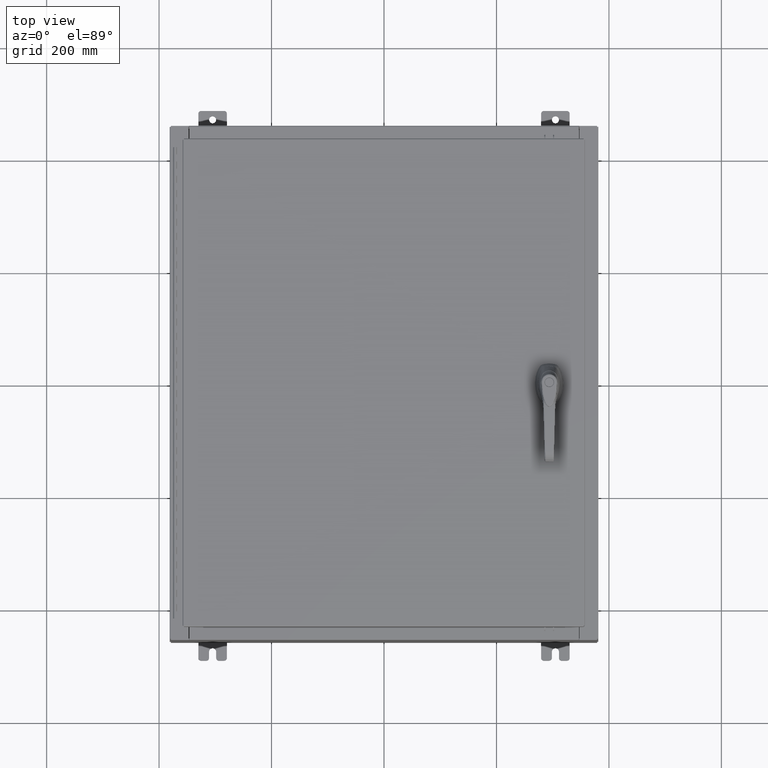
[diagram: clean part render]
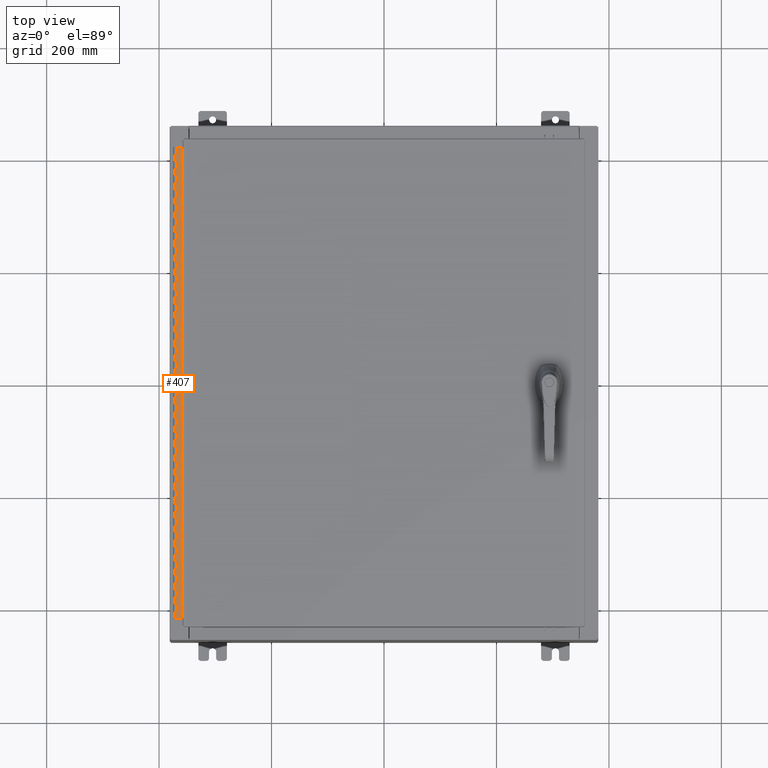
[diagram: same view with one face highlighted and labeled with its STEP entity id]
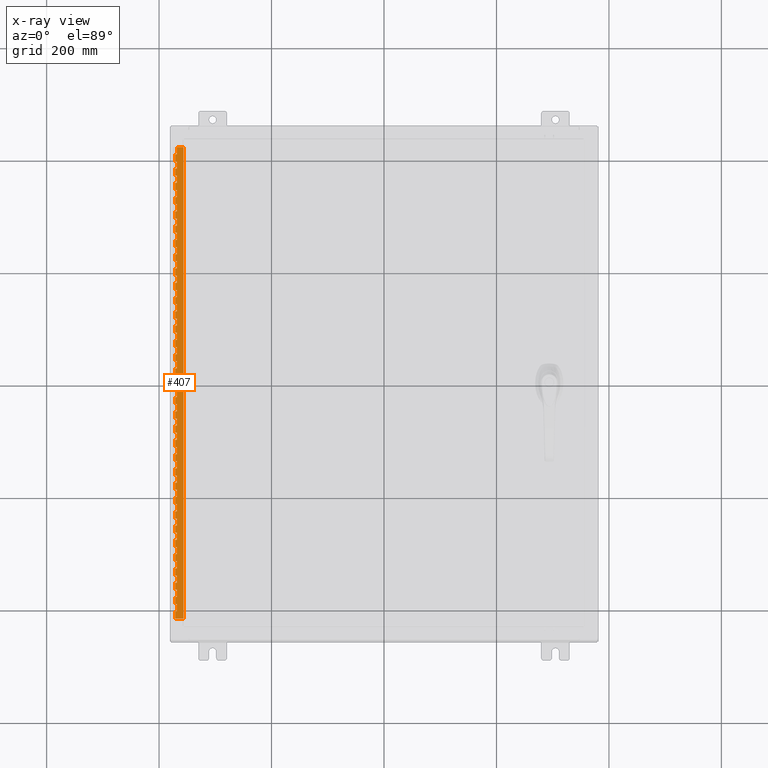
[diagram: x-ray of the same camera — body ghosted, the highlighted face saturated]
A machine part, top view. The second image highlights one B-rep face of the part: STEP entity #407.
The next image is the same camera in x-ray: the body ghosted, the highlighted face saturated — about 0% of this face is hidden behind the body in this view.
In plain terms, the highlighted planar face has unit normal (-0, -0, 1).
Its self-contained STEP definition (entity closure, byte-faithful):
#59 = DIRECTION ( 'NONE',  ( 0.0000000000000000000, -0.0000000000000000000, -1.000000000000000000 ) ) ;
#66 = CARTESIAN_POINT ( 'NONE',  ( -0.6869999999999978300, 0.6754999999999996600, -33.00000000000000000 ) ) ;
#89 = ORIENTED_EDGE ( 'NONE', *, *, #90309, .T. ) ;
#337 = VERTEX_POINT ( 'NONE', #101675 ) ;
#407 = ADVANCED_FACE ( 'NONE', ( #48738 ), #34955, .T. ) ;
#419 = VECTOR ( 'NONE', #76503, 39.37007874015748100 ) ;
#751 = EDGE_CURVE ( 'NONE', #100970, #92847, #107263, .T. ) ;
#811 = VERTEX_POINT ( 'NONE', #70538 ) ;
#861 = VECTOR ( 'NONE', #94692, 39.37007874015748100 ) ;
#880 = ORIENTED_EDGE ( 'NONE', *, *, #58577, .F. ) ;
#963 = LINE ( 'NONE', #84154, #100054 ) ;
#1185 = LINE ( 'NONE', #85046, #77715 ) ;
#1511 = CARTESIAN_POINT ( 'NONE',  ( -0.6869999999999978300, 0.6754999999999996600, -33.00000000000000000 ) ) ;
#1538 = CARTESIAN_POINT ( 'NONE',  ( -0.6870000000000022800, -0.6245000000000003900, 0.0000000000000000000 ) ) ;
#1545 = ORIENTED_EDGE ( 'NONE', *, *, #118144, .F. ) ;
#1834 = CARTESIAN_POINT ( 'NONE',  ( -0.6869999999999978300, 0.6754999999999996600, -2.000000000000000000 ) ) ;
#1886 = EDGE_CURVE ( 'NONE', #123345, #83952, #111601, .T. ) ;
#2029 = DIRECTION ( 'NONE',  ( 0.0000000000000000000, 0.0000000000000000000, 1.000000000000000000 ) ) ;
#2117 = LINE ( 'NONE', #105520, #98171 ) ;
#2377 = EDGE_CURVE ( 'NONE', #13923, #35533, #40611, .T. ) ;
#2535 = VECTOR ( 'NONE', #93114, 39.37007874015748100 ) ;
#2540 = DIRECTION ( 'NONE',  ( 3.389037039080723100E-015, 1.000000000000000000, -0.0000000000000000000 ) ) ;
#2696 = CARTESIAN_POINT ( 'NONE',  ( -0.6869999999999978300, 0.6754999999999996600, -14.00000000000000000 ) ) ;
#2899 = VERTEX_POINT ( 'NONE', #32081 ) ;
#3224 = LINE ( 'NONE', #49786, #28715 ) ;
#3289 = DIRECTION ( 'NONE',  ( 0.0000000000000000000, 0.0000000000000000000, 1.000000000000000000 ) ) ;
#3469 = ORIENTED_EDGE ( 'NONE', *, *, #45711, .F. ) ;
#3492 = ORIENTED_EDGE ( 'NONE', *, *, #44274, .F. ) ;
#3660 = CARTESIAN_POINT ( 'NONE',  ( -0.6869999999999978300, 0.6754999999999996600, -19.50000000000000000 ) ) ;
#3873 = CARTESIAN_POINT ( 'NONE',  ( -0.6869999999999978300, 0.6754999999999996600, -24.99999999999999600 ) ) ;
#3970 = CARTESIAN_POINT ( 'NONE',  ( -0.6869999999999982800, 0.5504999999999997700, -19.00000000000000000 ) ) ;
#4105 = LINE ( 'NONE', #88187, #35652 ) ;
#4363 = EDGE_CURVE ( 'NONE', #33196, #24916, #67329, .T. ) ;
#4530 = VERTEX_POINT ( 'NONE', #23645 ) ;
#4574 = LINE ( 'NONE', #22992, #43576 ) ;
#4603 = EDGE_CURVE ( 'NONE', #55997, #56885, #77794, .T. ) ;
#4709 = ORIENTED_EDGE ( 'NONE', *, *, #63365, .F. ) ;
#4808 = VECTOR ( 'NONE', #112573, 39.37007874015748100 ) ;
#4855 = DIRECTION ( 'NONE',  ( 3.389037039080723100E-015, 1.000000000000000000, -0.0000000000000000000 ) ) ;
#4903 = LINE ( 'NONE', #62664, #15337 ) ;
#4909 = EDGE_CURVE ( 'NONE', #81036, #105866, #56745, .T. ) ;
#4935 = VECTOR ( 'NONE', #29807, 39.37007874015748100 ) ;
#5082 = CARTESIAN_POINT ( 'NONE',  ( -0.6869999999999973900, 0.8004999999999995500, -16.50000000000000000 ) ) ;
#5145 = EDGE_CURVE ( 'NONE', #114707, #41413, #19150, .T. ) ;
#5211 = VECTOR ( 'NONE', #30649, 39.37007874015748100 ) ;
#5413 = VERTEX_POINT ( 'NONE', #25590 ) ;
#5441 = DIRECTION ( 'NONE',  ( -3.389037039080723100E-015, -1.000000000000000000, 0.0000000000000000000 ) ) ;
#5443 = VERTEX_POINT ( 'NONE', #54143 ) ;
#5477 = EDGE_CURVE ( 'NONE', #60042, #5413, #29645, .T. ) ;
#5569 = EDGE_CURVE ( 'NONE', #11590, #68533, #20600, .T. ) ;
#5741 = VERTEX_POINT ( 'NONE', #28448 ) ;
#5762 = VECTOR ( 'NONE', #28989, 39.37007874015748100 ) ;
#5768 = EDGE_CURVE ( 'NONE', #110745, #85573, #8608, .T. ) ;
#5919 = CARTESIAN_POINT ( 'NONE',  ( -0.6869999999999978300, 0.6754999999999996600, -13.50000000000000000 ) ) ;
#5956 = VECTOR ( 'NONE', #51297, 39.37007874015748100 ) ;
#5995 = DIRECTION ( 'NONE',  ( 0.0000000000000000000, -0.0000000000000000000, -1.000000000000000000 ) ) ;
#6001 = ORIENTED_EDGE ( 'NONE', *, *, #89024, .T. ) ;
#6055 = VECTOR ( 'NONE', #119115, 39.37007874015748100 ) ;
#6200 = VECTOR ( 'NONE', #38566, 39.37007874015748100 ) ;
#6240 = CARTESIAN_POINT ( 'NONE',  ( -0.6869999999999982800, 0.5504999999999997700, -29.99999999999999600 ) ) ;
#6285 = CARTESIAN_POINT ( 'NONE',  ( -0.6869999999999973900, 0.8004999999999995500, -10.00000000000000000 ) ) ;
#6462 = CARTESIAN_POINT ( 'NONE',  ( -0.6869999999999982800, 0.5504999999999997700, -14.49999999999999800 ) ) ;
#6604 = EDGE_CURVE ( 'NONE', #11911, #96952, #62558, .T. ) ;
#6661 = CARTESIAN_POINT ( 'NONE',  ( -0.6869999999999982800, 0.5504999999999997700, -6.499999999999999100 ) ) ;
#6684 = DIRECTION ( 'NONE',  ( 0.0000000000000000000, 0.0000000000000000000, 1.000000000000000000 ) ) ;
#6712 = VERTEX_POINT ( 'NONE', #114510 ) ;
#6767 = VERTEX_POINT ( 'NONE', #57491 ) ;
#6811 = LINE ( 'NONE', #95552, #9749 ) ;
#6920 = LINE ( 'NONE', #77402, #99941 ) ;
#6991 = VECTOR ( 'NONE', #38224, 39.37007874015748100 ) ;
#7066 = EDGE_CURVE ( 'NONE', #101507, #18260, #57951, .T. ) ;
#7713 = LINE ( 'NONE', #35373, #106751 ) ;
#7777 = CARTESIAN_POINT ( 'NONE',  ( -0.6869999999999973900, 0.8004999999999995500, -12.99999999999999800 ) ) ;
#7995 = ORIENTED_EDGE ( 'NONE', *, *, #110198, .F. ) ;
#8012 = CARTESIAN_POINT ( 'NONE',  ( -0.6869999999999978300, 0.6754999999999996600, -31.00000000000000000 ) ) ;
#8025 = LINE ( 'NONE', #122218, #56056 ) ;
#8219 = CARTESIAN_POINT ( 'NONE',  ( -0.6869999999999982800, 0.5504999999999997700, -10.00000000000000000 ) ) ;
#8304 = EDGE_CURVE ( 'NONE', #120329, #811, #109038, .T. ) ;
#8532 = EDGE_CURVE ( 'NONE', #99248, #69017, #90978, .T. ) ;
#8546 = CARTESIAN_POINT ( 'NONE',  ( -0.6869999999999982800, 0.5504999999999997700, -28.99999999999999600 ) ) ;
#8563 = VERTEX_POINT ( 'NONE', #108679 ) ;
#8608 = LINE ( 'NONE', #9166, #107675 ) ;
#8774 = ORIENTED_EDGE ( 'NONE', *, *, #5477, .F. ) ;
#8789 = ORIENTED_EDGE ( 'NONE', *, *, #8532, .F. ) ;
#8872 = LINE ( 'NONE', #62049, #124371 ) ;
#8889 = EDGE_CURVE ( 'NONE', #5413, #84271, #21842, .T. ) ;
#9064 = EDGE_CURVE ( 'NONE', #15333, #81680, #86349, .T. ) ;
#9111 = CARTESIAN_POINT ( 'NONE',  ( -0.6869999999999978300, 0.6754999999999996600, -16.00000000000000000 ) ) ;
#9166 = CARTESIAN_POINT ( 'NONE',  ( -0.6869999999999982800, 0.5504999999999997700, -16.50000000000000000 ) ) ;
#9298 = CARTESIAN_POINT ( 'NONE',  ( -0.6869999999999982800, 0.5504999999999997700, -20.50000000000000400 ) ) ;
#9449 = VECTOR ( 'NONE', #46169, 39.37007874015748100 ) ;
#9496 = VERTEX_POINT ( 'NONE', #3660 ) ;
#9749 = VECTOR ( 'NONE', #38083, 39.37007874015748100 ) ;
#9891 = VECTOR ( 'NONE', #23025, 39.37007874015748100 ) ;
#10002 = VERTEX_POINT ( 'NONE', #20683 ) ;
#10033 = CARTESIAN_POINT ( 'NONE',  ( -0.6869999999999973900, 0.8004999999999995500, -23.99999999999999600 ) ) ;
#10270 = VERTEX_POINT ( 'NONE', #94330 ) ;
#10341 = CARTESIAN_POINT ( 'NONE',  ( -0.6869999999999978300, 0.6754999999999996600, -5.000000000000000000 ) ) ;
#10358 = VECTOR ( 'NONE', #70115, 39.37007874015748100 ) ;
#10377 = ORIENTED_EDGE ( 'NONE', *, *, #87742, .F. ) ;
#10433 = EDGE_CURVE ( 'NONE', #102462, #51784, #24627, .T. ) ;
#10722 = CARTESIAN_POINT ( 'NONE',  ( -0.6869999999999978300, 0.6754999999999996600, -24.50000000000000000 ) ) ;
#10858 = ORIENTED_EDGE ( 'NONE', *, *, #124117, .F. ) ;
#11000 = DIRECTION ( 'NONE',  ( -3.389037039080723100E-015, -1.000000000000000000, 0.0000000000000000000 ) ) ;
#11590 = VERTEX_POINT ( 'NONE', #27905 ) ;
#11715 = CARTESIAN_POINT ( 'NONE',  ( -0.6869999999999973900, 0.8004999999999995500, -7.499999999999999100 ) ) ;
#11864 = ORIENTED_EDGE ( 'NONE', *, *, #117041, .F. ) ;
#11911 = VERTEX_POINT ( 'NONE', #14019 ) ;
#11950 = ORIENTED_EDGE ( 'NONE', *, *, #2377, .F. ) ;
#11952 = EDGE_CURVE ( 'NONE', #71974, #90919, #104002, .T. ) ;
#12160 = VECTOR ( 'NONE', #91688, 39.37007874015748100 ) ;
#12325 = VERTEX_POINT ( 'NONE', #67268 ) ;
#12392 = CARTESIAN_POINT ( 'NONE',  ( -0.6869999999999978300, 0.6754999999999996600, -4.500000000000000000 ) ) ;
#12442 = VECTOR ( 'NONE', #93711, 39.37007874015748100 ) ;
#12478 = EDGE_CURVE ( 'NONE', #81036, #72395, #118865, .T. ) ;
#12564 = LINE ( 'NONE', #110702, #111662 ) ;
#12566 = VERTEX_POINT ( 'NONE', #8012 ) ;
#12604 = ORIENTED_EDGE ( 'NONE', *, *, #96997, .T. ) ;
#12748 = EDGE_CURVE ( 'NONE', #60042, #18260, #27288, .T. ) ;
#12845 = DIRECTION ( 'NONE',  ( 0.0000000000000000000, 0.0000000000000000000, 1.000000000000000000 ) ) ;
#12965 = EDGE_CURVE ( 'NONE', #68533, #100970, #15255, .T. ) ;
#12987 = VERTEX_POINT ( 'NONE', #80924 ) ;
#13061 = DIRECTION ( 'NONE',  ( -3.389037039080723100E-015, -1.000000000000000000, 0.0000000000000000000 ) ) ;
#13104 = CARTESIAN_POINT ( 'NONE',  ( -0.6869999999999973900, 0.8004999999999995500, -8.500000000000000000 ) ) ;
#13182 = CARTESIAN_POINT ( 'NONE',  ( -0.6869999999999982800, 0.5504999999999997700, -0.5000000000000000000 ) ) ;
#13244 = CARTESIAN_POINT ( 'NONE',  ( -0.6869999999999978300, 0.6754999999999996600, -8.500000000000000000 ) ) ;
#13249 = VECTOR ( 'NONE', #103689, 39.37007874015748100 ) ;
#13303 = VECTOR ( 'NONE', #95086, 39.37007874015748100 ) ;
#13332 = LINE ( 'NONE', #92358, #70427 ) ;
#13365 = CARTESIAN_POINT ( 'NONE',  ( -0.6869999999999973900, 0.8004999999999995500, -4.500000000000000000 ) ) ;
#13372 = LINE ( 'NONE', #108310, #10358 ) ;
#13390 = CARTESIAN_POINT ( 'NONE',  ( -0.6869999999999978300, 0.6754999999999996600, -17.99999999999999600 ) ) ;
#13414 = VECTOR ( 'NONE', #28035, 39.37007874015748100 ) ;
#13548 = VECTOR ( 'NONE', #75133, 39.37007874015748100 ) ;
#13553 = LINE ( 'NONE', #59022, #87087 ) ;
#13853 = CARTESIAN_POINT ( 'NONE',  ( -0.6869999999999978300, 0.6754999999999996600, -20.00000000000000000 ) ) ;
#13866 = VECTOR ( 'NONE', #96642, 39.37007874015748100 ) ;
#13875 = ORIENTED_EDGE ( 'NONE', *, *, #96814, .T. ) ;
#13923 = VERTEX_POINT ( 'NONE', #78180 ) ;
#13944 = EDGE_CURVE ( 'NONE', #94958, #52588, #53449, .T. ) ;
#14019 = CARTESIAN_POINT ( 'NONE',  ( -0.6869999999999982800, 0.5504999999999997700, -2.999999999999999600 ) ) ;
#14050 = EDGE_CURVE ( 'NONE', #84924, #37700, #23591, .T. ) ;
#14161 = VERTEX_POINT ( 'NONE', #10341 ) ;
#14186 = ORIENTED_EDGE ( 'NONE', *, *, #112543, .F. ) ;
#14290 = CARTESIAN_POINT ( 'NONE',  ( -0.6869999999999982800, 0.5504999999999997700, -25.50000000000000400 ) ) ;
#14435 = CARTESIAN_POINT ( 'NONE',  ( -0.6869999999999973900, 0.8004999999999995500, -14.49999999999999800 ) ) ;
#14483 = VECTOR ( 'NONE', #115962, 39.37007874015748100 ) ;
#14528 = CARTESIAN_POINT ( 'NONE',  ( -0.6869999999999982800, 0.5504999999999997700, -7.499999999999999100 ) ) ;
#14633 = CARTESIAN_POINT ( 'NONE',  ( -0.6869999999999982800, 0.5504999999999997700, -32.00000000000000000 ) ) ;
#14700 = EDGE_CURVE ( 'NONE', #47952, #83894, #38524, .T. ) ;
#14785 = LINE ( 'NONE', #1511, #113853 ) ;
#14857 = DIRECTION ( 'NONE',  ( -3.389037039080723100E-015, -1.000000000000000000, 0.0000000000000000000 ) ) ;
#15052 = ORIENTED_EDGE ( 'NONE', *, *, #51887, .F. ) ;
#15255 = LINE ( 'NONE', #100215, #43836 ) ;
#15254 = LINE ( 'NONE', #46553, #82825 ) ;
#15297 = VECTOR ( 'NONE', #121381, 39.37007874015748100 ) ;
#15333 = VERTEX_POINT ( 'NONE', #96110 ) ;
#15337 = VECTOR ( 'NONE', #72318, 39.37007874015748100 ) ;
#15369 = VERTEX_POINT ( 'NONE', #96507 ) ;
#15426 = CARTESIAN_POINT ( 'NONE',  ( -0.6869999999999973900, 0.8004999999999995500, -10.50000000000000000 ) ) ;
#15485 = LINE ( 'NONE', #36299, #12442 ) ;
#15789 = DIRECTION ( 'NONE',  ( -3.389037039080723100E-015, -1.000000000000000000, 0.0000000000000000000 ) ) ;
#15877 = DIRECTION ( 'NONE',  ( 3.389037039080723100E-015, 1.000000000000000000, -0.0000000000000000000 ) ) ;
#15883 = DIRECTION ( 'NONE',  ( 3.389037039080723100E-015, 1.000000000000000000, -0.0000000000000000000 ) ) ;
#15963 = VECTOR ( 'NONE', #39715, 39.37007874015748100 ) ;
#16226 = LINE ( 'NONE', #32019, #109287 ) ;
#16341 = DIRECTION ( 'NONE',  ( 3.389037039080723100E-015, 1.000000000000000000, -0.0000000000000000000 ) ) ;
#16451 = LINE ( 'NONE', #37713, #13414 ) ;
#16503 = CARTESIAN_POINT ( 'NONE',  ( -0.6869999999999978300, 0.6754999999999996600, -12.49999999999999800 ) ) ;
#16580 = VERTEX_POINT ( 'NONE', #123490 ) ;
#16677 = CARTESIAN_POINT ( 'NONE',  ( -0.6869999999999973900, 0.8004999999999995500, -4.000000000000000000 ) ) ;
#16912 = VECTOR ( 'NONE', #2029, 39.37007874015748100 ) ;
#17242 = DIRECTION ( 'NONE',  ( 0.0000000000000000000, 0.0000000000000000000, 1.000000000000000000 ) ) ;
#17370 = CARTESIAN_POINT ( 'NONE',  ( -0.6869999999999982800, 0.5504999999999997700, -9.500000000000000000 ) ) ;
#17454 = CARTESIAN_POINT ( 'NONE',  ( -0.6869999999999978300, 0.6754999999999996600, -33.00000000000000000 ) ) ;
#17713 = CARTESIAN_POINT ( 'NONE',  ( -0.6869999999999978300, 0.6754999999999996600, -27.50000000000000000 ) ) ;
#17741 = CARTESIAN_POINT ( 'NONE',  ( -0.6869999999999978300, 0.6754999999999996600, -7.000000000000000000 ) ) ;
#17880 = EDGE_LOOP ( 'NONE', ( #71759, #19302, #113747, #117369, #89, #10377, #10858, #60915, #36387, #118890, #86735, #65261, #27958, #88100, #40425, #62636, #40759, #45060, #74816, #78299, #29074, #92900, #61771, #77593, #107150, #98405, #33983, #8774, #50457, #105188, #15052, #95873, #117140, #106552, #29669, #78119, #42982, #120506, #83269, #95317, #59706, #92366, #41815, #49477, #35744, #61742, #111916, #71596, #43492, #59327, #66352, #51613, #12604, #98586, #60696, #83704, #43374, #74597, #1545, #18071, #113459, #8789, #72728, #97536, #64980, #99573, #89444, #19942, #20437, #79220, #39910, #11864, #6001, #72826, #124189, #11950, #39079, #3492, #39366, #102834, #21933, #84888, #91652, #75776, #23989, #95850, #41139, #86533, #60911, #52471, #93415, #52768, #41303, #54826, #880, #79471, #66624, #82398, #83247, #105046, #102971, #4709, #88304, #52755, #66107, #102742, #119174, #110320, #118294, #3469, #98756, #23039, #118336, #14186, #55253, #53679, #43619, #76456, #23829, #7995, #101204, #106703, #105439, #109127, #13875, #32671, #56111, #45695, #18933, #56934, #118310, #115414, #120409, #89016 ) ) ;
#18063 = CARTESIAN_POINT ( 'NONE',  ( -0.6869999999999973900, 0.8004999999999995500, -23.50000000000000000 ) ) ;
#18071 = ORIENTED_EDGE ( 'NONE', *, *, #104776, .F. ) ;
#18253 = VECTOR ( 'NONE', #111954, 39.37007874015748100 ) ;
#18260 = VERTEX_POINT ( 'NONE', #58479 ) ;
#18309 = CARTESIAN_POINT ( 'NONE',  ( -0.6869999999999978300, 0.6754999999999996600, -33.00000000000000000 ) ) ;
#18466 = LINE ( 'NONE', #103663, #9449 ) ;
#18519 = LINE ( 'NONE', #43274, #120624 ) ;
#18578 = VERTEX_POINT ( 'NONE', #44041 ) ;
#18802 = EDGE_CURVE ( 'NONE', #60155, #11911, #111485, .T. ) ;
#18933 = ORIENTED_EDGE ( 'NONE', *, *, #94401, .T. ) ;
#18997 = EDGE_CURVE ( 'NONE', #85573, #121898, #99471, .T. ) ;
#19150 = LINE ( 'NONE', #117448, #92763 ) ;
#19302 = ORIENTED_EDGE ( 'NONE', *, *, #107251, .T. ) ;
#19328 = DIRECTION ( 'NONE',  ( 0.0000000000000000000, 0.0000000000000000000, 1.000000000000000000 ) ) ;
#19351 = VERTEX_POINT ( 'NONE', #37157 ) ;
#19401 = VERTEX_POINT ( 'NONE', #3970 ) ;
#19559 = EDGE_CURVE ( 'NONE', #9496, #104286, #117326, .T. ) ;
#19942 = ORIENTED_EDGE ( 'NONE', *, *, #116149, .F. ) ;
#20437 = ORIENTED_EDGE ( 'NONE', *, *, #120452, .T. ) ;
#20456 = CARTESIAN_POINT ( 'NONE',  ( -0.6869999999999973900, 0.8004999999999995500, -6.000000000000000900 ) ) ;
#20477 = LINE ( 'NONE', #35111, #116522 ) ;
#20494 = DIRECTION ( 'NONE',  ( 0.0000000000000000000, -0.0000000000000000000, -1.000000000000000000 ) ) ;
#20600 = LINE ( 'NONE', #36495, #116638 ) ;
#20683 = CARTESIAN_POINT ( 'NONE',  ( -0.6869999999999982800, 0.5504999999999997700, -20.50000000000000400 ) ) ;
#20692 = EDGE_CURVE ( 'NONE', #84271, #116054, #96187, .T. ) ;
#20945 = EDGE_CURVE ( 'NONE', #39012, #60970, #106686, .T. ) ;
#20960 = VERTEX_POINT ( 'NONE', #65662 ) ;
#21245 = VECTOR ( 'NONE', #19328, 39.37007874015748100 ) ;
#21263 = LINE ( 'NONE', #93570, #18253 ) ;
#21378 = VECTOR ( 'NONE', #75805, 39.37007874015748100 ) ;
#21423 = VECTOR ( 'NONE', #80005, 39.37007874015748100 ) ;
#21589 = VECTOR ( 'NONE', #82516, 39.37007874015748100 ) ;
#21604 = EDGE_CURVE ( 'NONE', #73263, #44526, #36075, .T. ) ;
#21610 = VECTOR ( 'NONE', #4855, 39.37007874015748100 ) ;
#21842 = LINE ( 'NONE', #87625, #47376 ) ;
#21908 = VECTOR ( 'NONE', #26319, 39.37007874015748100 ) ;
#21933 = ORIENTED_EDGE ( 'NONE', *, *, #98897, .T. ) ;
#22992 = CARTESIAN_POINT ( 'NONE',  ( -0.6869999999999973900, 0.8004999999999995500, -8.000000000000000000 ) ) ;
#23025 = DIRECTION ( 'NONE',  ( 3.389037039080723100E-015, 1.000000000000000000, -0.0000000000000000000 ) ) ;
#23039 = ORIENTED_EDGE ( 'NONE', *, *, #116241, .F. ) ;
#23068 = EDGE_CURVE ( 'NONE', #25770, #31739, #115296, .T. ) ;
#23591 = LINE ( 'NONE', #13104, #122650 ) ;
#23645 = CARTESIAN_POINT ( 'NONE',  ( -0.6869999999999982800, 0.5504999999999997700, -31.00000000000000000 ) ) ;
#23713 = CARTESIAN_POINT ( 'NONE',  ( -0.6869999999999978300, 0.6754999999999996600, -17.00000000000000000 ) ) ;
#23829 = ORIENTED_EDGE ( 'NONE', *, *, #74756, .F. ) ;
#23856 = CARTESIAN_POINT ( 'NONE',  ( -0.6869999999999982800, 0.5504999999999997700, -13.50000000000000000 ) ) ;
#23981 = VERTEX_POINT ( 'NONE', #39248 ) ;
#23989 = ORIENTED_EDGE ( 'NONE', *, *, #109357, .T. ) ;
#24077 = LINE ( 'NONE', #70360, #72137 ) ;
#24081 = VERTEX_POINT ( 'NONE', #118043 ) ;
#24123 = CARTESIAN_POINT ( 'NONE',  ( -0.6869999999999978300, 0.6754999999999996600, -21.00000000000000000 ) ) ;
#24229 = VECTOR ( 'NONE', #72936, 39.37007874015748100 ) ;
#24423 = LINE ( 'NONE', #109872, #97944 ) ;
#24609 = CARTESIAN_POINT ( 'NONE',  ( -0.6869999999999982800, 0.5504999999999997700, -23.99999999999999600 ) ) ;
#24627 = LINE ( 'NONE', #92151, #21589 ) ;
#24842 = LINE ( 'NONE', #102239, #47349 ) ;
#24843 = DIRECTION ( 'NONE',  ( 3.389037039080723100E-015, 1.000000000000000000, -0.0000000000000000000 ) ) ;
#24916 = VERTEX_POINT ( 'NONE', #34101 ) ;
#25411 = DIRECTION ( 'NONE',  ( 0.0000000000000000000, 0.0000000000000000000, 1.000000000000000000 ) ) ;
#25475 = VERTEX_POINT ( 'NONE', #30578 ) ;
#25590 = CARTESIAN_POINT ( 'NONE',  ( -0.6869999999999982800, 0.5504999999999997700, -26.50000000000000400 ) ) ;
#25770 = VERTEX_POINT ( 'NONE', #23856 ) ;
#25846 = LINE ( 'NONE', #44613, #105415 ) ;
#26016 = EDGE_CURVE ( 'NONE', #2899, #74885, #49981, .T. ) ;
#26247 = DIRECTION ( 'NONE',  ( -3.389037039080723100E-015, -1.000000000000000000, 0.0000000000000000000 ) ) ;
#26319 = DIRECTION ( 'NONE',  ( 3.389037039080723100E-015, 1.000000000000000000, -0.0000000000000000000 ) ) ;
#26343 = VECTOR ( 'NONE', #15789, 39.37007874015748100 ) ;
#26416 = VERTEX_POINT ( 'NONE', #114278 ) ;
#26706 = VERTEX_POINT ( 'NONE', #101531 ) ;
#26836 = LINE ( 'NONE', #113286, #49317 ) ;
#27138 = DIRECTION ( 'NONE',  ( 0.0000000000000000000, 0.0000000000000000000, 1.000000000000000000 ) ) ;
#27288 = LINE ( 'NONE', #77570, #58828 ) ;
#27823 = DIRECTION ( 'NONE',  ( 0.0000000000000000000, 0.0000000000000000000, 1.000000000000000000 ) ) ;
#27905 = CARTESIAN_POINT ( 'NONE',  ( -0.6869999999999978300, 0.6754999999999996600, -22.50000000000000000 ) ) ;
#27958 = ORIENTED_EDGE ( 'NONE', *, *, #109230, .T. ) ;
#27990 = CARTESIAN_POINT ( 'NONE',  ( -0.6869999999999978300, 0.6754999999999996600, -33.00000000000000000 ) ) ;
#28035 = DIRECTION ( 'NONE',  ( 0.0000000000000000000, 0.0000000000000000000, 1.000000000000000000 ) ) ;
#28257 = DIRECTION ( 'NONE',  ( 0.0000000000000000000, 0.0000000000000000000, 1.000000000000000000 ) ) ;
#28382 = LINE ( 'NONE', #31976, #5956 ) ;
#28405 = CARTESIAN_POINT ( 'NONE',  ( -0.6869999999999978300, 0.6754999999999996600, -11.50000000000000000 ) ) ;
#28426 = LINE ( 'NONE', #65154, #47955 ) ;
#28448 = CARTESIAN_POINT ( 'NONE',  ( -0.6869999999999978300, 0.6754999999999996600, -9.000000000000000000 ) ) ;
#28593 = CARTESIAN_POINT ( 'NONE',  ( -0.6869999999999978300, 0.6754999999999996600, -16.50000000000000000 ) ) ;
#28715 = VECTOR ( 'NONE', #97587, 39.37007874015748100 ) ;
#28911 = VERTEX_POINT ( 'NONE', #29556 ) ;
#28935 = LINE ( 'NONE', #66823, #419 ) ;
#28989 = DIRECTION ( 'NONE',  ( -3.389037039080723100E-015, -1.000000000000000000, 0.0000000000000000000 ) ) ;
#29074 = ORIENTED_EDGE ( 'NONE', *, *, #100835, .T. ) ;
#29243 = LINE ( 'NONE', #95972, #102867 ) ;
#29308 = LINE ( 'NONE', #92580, #26343 ) ;
#29533 = CARTESIAN_POINT ( 'NONE',  ( -0.6869999999999982800, 0.5504999999999997700, -32.50000000000000000 ) ) ;
#29556 = CARTESIAN_POINT ( 'NONE',  ( -0.6869999999999978300, 0.6754999999999996600, -15.50000000000000000 ) ) ;
#29645 = LINE ( 'NONE', #35248, #80726 ) ;
#29669 = ORIENTED_EDGE ( 'NONE', *, *, #64742, .F. ) ;
#29807 = DIRECTION ( 'NONE',  ( 0.0000000000000000000, -0.0000000000000000000, -1.000000000000000000 ) ) ;
#30125 = CARTESIAN_POINT ( 'NONE',  ( -0.6869999999999978300, 0.6754999999999996600, -18.50000000000000000 ) ) ;
#30206 = VERTEX_POINT ( 'NONE', #117589 ) ;
#30374 = LINE ( 'NONE', #70415, #84459 ) ;
#30578 = CARTESIAN_POINT ( 'NONE',  ( -0.6869999999999982800, 0.5504999999999997700, -1.000000000000000000 ) ) ;
#30649 = DIRECTION ( 'NONE',  ( 3.389037039080723100E-015, 1.000000000000000000, -0.0000000000000000000 ) ) ;
#30663 = CARTESIAN_POINT ( 'NONE',  ( -0.6869999999999978300, 0.6754999999999996600, -0.5000000000000000000 ) ) ;
#30701 = DIRECTION ( 'NONE',  ( 0.0000000000000000000, 0.0000000000000000000, 1.000000000000000000 ) ) ;
#30741 = DIRECTION ( 'NONE',  ( 3.389037039080723100E-015, 1.000000000000000000, -0.0000000000000000000 ) ) ;
#31083 = EDGE_CURVE ( 'NONE', #33974, #34215, #16451, .T. ) ;
#31196 = CARTESIAN_POINT ( 'NONE',  ( -0.6869999999999978300, 0.6754999999999996600, -31.50000000000000400 ) ) ;
#31739 = VERTEX_POINT ( 'NONE', #114679 ) ;
#31897 = CARTESIAN_POINT ( 'NONE',  ( -0.6869999999999978300, 0.6754999999999996600, -4.000000000000000000 ) ) ;
#31976 = CARTESIAN_POINT ( 'NONE',  ( -0.6869999999999982800, 0.5504999999999997700, -8.500000000000000000 ) ) ;
#32019 = CARTESIAN_POINT ( 'NONE',  ( -0.6869999999999982800, 0.5504999999999997700, -10.50000000000000000 ) ) ;
#32081 = CARTESIAN_POINT ( 'NONE',  ( -0.6869999999999978300, 0.6754999999999996600, -29.50000000000000000 ) ) ;
#32209 = LINE ( 'NONE', #115657, #80252 ) ;
#32299 = DIRECTION ( 'NONE',  ( 3.389037039080723100E-015, 1.000000000000000000, -0.0000000000000000000 ) ) ;
#32335 = VECTOR ( 'NONE', #42356, 39.37007874015748100 ) ;
#32600 = LINE ( 'NONE', #27990, #80639 ) ;
#32671 = ORIENTED_EDGE ( 'NONE', *, *, #118392, .F. ) ;
#32681 = DIRECTION ( 'NONE',  ( -3.389037039080723100E-015, -1.000000000000000000, 0.0000000000000000000 ) ) ;
#32772 = CARTESIAN_POINT ( 'NONE',  ( -0.6869999999999978300, 0.6754999999999996600, -27.00000000000000000 ) ) ;
#33118 = LINE ( 'NONE', #20456, #55644 ) ;
#33196 = VERTEX_POINT ( 'NONE', #110343 ) ;
#33235 = DIRECTION ( 'NONE',  ( 3.389037039080723100E-015, 1.000000000000000000, -0.0000000000000000000 ) ) ;
#33330 = LINE ( 'NONE', #45471, #4808 ) ;
#33355 = LINE ( 'NONE', #115830, #106894 ) ;
#33510 = VECTOR ( 'NONE', #33235, 39.37007874015748100 ) ;
#33544 = CARTESIAN_POINT ( 'NONE',  ( -0.6869999999999978300, 0.6754999999999996600, -28.99999999999999600 ) ) ;
#33601 = LINE ( 'NONE', #55034, #59085 ) ;
#33927 = EDGE_CURVE ( 'NONE', #115458, #6712, #40024, .T. ) ;
#33971 = VECTOR ( 'NONE', #65717, 39.37007874015748100 ) ;
#33974 = VERTEX_POINT ( 'NONE', #10722 ) ;
#33983 = ORIENTED_EDGE ( 'NONE', *, *, #8889, .F. ) ;
#34022 = DIRECTION ( 'NONE',  ( -3.389037039080723100E-015, -1.000000000000000000, 0.0000000000000000000 ) ) ;
#34101 = CARTESIAN_POINT ( 'NONE',  ( -0.6869999999999982800, 0.5504999999999997700, -5.000000000000000000 ) ) ;
#34215 = VERTEX_POINT ( 'NONE', #121991 ) ;
#34763 = CARTESIAN_POINT ( 'NONE',  ( -0.6869999999999978300, 0.6754999999999996600, -32.50000000000000000 ) ) ;
#34953 = DIRECTION ( 'NONE',  ( -3.389037039080723100E-015, -1.000000000000000000, 0.0000000000000000000 ) ) ;
#34955 = PLANE ( 'NONE',  #67826 ) ;
#35076 = VECTOR ( 'NONE', #83394, 39.37007874015748100 ) ;
#35077 = CARTESIAN_POINT ( 'NONE',  ( -0.6869999999999998300, 0.07549999999999991400, -33.00000000000000000 ) ) ;
#35111 = CARTESIAN_POINT ( 'NONE',  ( -0.6869999999999978300, 0.6754999999999996600, -33.00000000000000000 ) ) ;
#35115 = LINE ( 'NONE', #6285, #99611 ) ;
#35238 = CARTESIAN_POINT ( 'NONE',  ( -0.6869999999999978300, 0.6754999999999996600, -33.00000000000000000 ) ) ;
#35248 = CARTESIAN_POINT ( 'NONE',  ( -0.6869999999999973900, 0.8004999999999995500, -26.50000000000000400 ) ) ;
#35373 = CARTESIAN_POINT ( 'NONE',  ( -0.6869999999999978300, 0.6754999999999996600, -33.00000000000000000 ) ) ;
#35533 = VERTEX_POINT ( 'NONE', #6462 ) ;
#35652 = VECTOR ( 'NONE', #30701, 39.37007874015748100 ) ;
#35744 = ORIENTED_EDGE ( 'NONE', *, *, #47652, .T. ) ;
#35755 = CARTESIAN_POINT ( 'NONE',  ( -0.6869999999999982800, 0.5504999999999997700, -28.00000000000000000 ) ) ;
#35787 = DIRECTION ( 'NONE',  ( 1.000000000000000000, -3.369016658928398200E-015, 0.0000000000000000000 ) ) ;
#35797 = LINE ( 'NONE', #18063, #64300 ) ;
#35808 = DIRECTION ( 'NONE',  ( 0.0000000000000000000, 0.0000000000000000000, 1.000000000000000000 ) ) ;
#36075 = LINE ( 'NONE', #96145, #58526 ) ;
#36247 = DIRECTION ( 'NONE',  ( 0.0000000000000000000, 0.0000000000000000000, 1.000000000000000000 ) ) ;
#36299 = CARTESIAN_POINT ( 'NONE',  ( -0.6869999999999982800, 0.5504999999999997700, -19.50000000000000000 ) ) ;
#36387 = ORIENTED_EDGE ( 'NONE', *, *, #80323, .T. ) ;
#36495 = CARTESIAN_POINT ( 'NONE',  ( -0.6869999999999973900, 0.8004999999999995500, -22.50000000000000000 ) ) ;
#36714 = LINE ( 'NONE', #37285, #81717 ) ;
#36878 = VERTEX_POINT ( 'NONE', #87433 ) ;
#36932 = VERTEX_POINT ( 'NONE', #69808 ) ;
#37099 = VERTEX_POINT ( 'NONE', #81149 ) ;
#37157 = CARTESIAN_POINT ( 'NONE',  ( -0.6869999999999978300, 0.6754999999999996600, -21.50000000000000400 ) ) ;
#37232 = LINE ( 'NONE', #73797, #40210 ) ;
#37285 = CARTESIAN_POINT ( 'NONE',  ( -0.6869999999999973900, 0.8004999999999995500, -11.99999999999999800 ) ) ;
#37678 = DIRECTION ( 'NONE',  ( 0.0000000000000000000, 0.0000000000000000000, 1.000000000000000000 ) ) ;
#37700 = VERTEX_POINT ( 'NONE', #71758 ) ;
#37713 = CARTESIAN_POINT ( 'NONE',  ( -0.6869999999999978300, 0.6754999999999996600, -33.00000000000000000 ) ) ;
#38014 = DIRECTION ( 'NONE',  ( 3.389037039080723100E-015, 1.000000000000000000, -0.0000000000000000000 ) ) ;
#38083 = DIRECTION ( 'NONE',  ( 0.0000000000000000000, -0.0000000000000000000, -1.000000000000000000 ) ) ;
#38105 = LINE ( 'NONE', #43622, #60626 ) ;
#38224 = DIRECTION ( 'NONE',  ( 0.0000000000000000000, -0.0000000000000000000, -1.000000000000000000 ) ) ;
#38421 = CARTESIAN_POINT ( 'NONE',  ( -0.6869999999999982800, 0.5504999999999997700, -8.000000000000000000 ) ) ;
#38524 = LINE ( 'NONE', #95432, #86524 ) ;
#38566 = DIRECTION ( 'NONE',  ( -3.389037039080723100E-015, -1.000000000000000000, 0.0000000000000000000 ) ) ;
#38832 = VERTEX_POINT ( 'NONE', #66477 ) ;
#38837 = LINE ( 'NONE', #113960, #13303 ) ;
#38942 = CARTESIAN_POINT ( 'NONE',  ( -0.6869999999999982800, 0.5504999999999997700, -20.00000000000000000 ) ) ;
#39012 = VERTEX_POINT ( 'NONE', #31196 ) ;
#39079 = ORIENTED_EDGE ( 'NONE', *, *, #118426, .T. ) ;
#39248 = CARTESIAN_POINT ( 'NONE',  ( -0.6869999999999978300, 0.6754999999999996600, -11.99999999999999800 ) ) ;
#39270 = CARTESIAN_POINT ( 'NONE',  ( -0.6869999999999973900, 0.8004999999999995500, -11.50000000000000000 ) ) ;
#39306 = EDGE_CURVE ( 'NONE', #6712, #39312, #90855, .T. ) ;
#39312 = VERTEX_POINT ( 'NONE', #94909 ) ;
#39321 = VECTOR ( 'NONE', #82109, 39.37007874015748100 ) ;
#39366 = ORIENTED_EDGE ( 'NONE', *, *, #23068, .F. ) ;
#39583 = CARTESIAN_POINT ( 'NONE',  ( -0.6869999999999982800, 0.5504999999999997700, -10.50000000000000000 ) ) ;
#39655 = CARTESIAN_POINT ( 'NONE',  ( -0.6869999999999978300, 0.6754999999999996600, -29.99999999999999600 ) ) ;
#39715 = DIRECTION ( 'NONE',  ( 0.0000000000000000000, -0.0000000000000000000, -1.000000000000000000 ) ) ;
#39828 = EDGE_CURVE ( 'NONE', #74885, #78624, #32209, .T. ) ;
#39910 = ORIENTED_EDGE ( 'NONE', *, *, #93706, .F. ) ;
#40022 = VECTOR ( 'NONE', #121903, 39.37007874015748100 ) ;
#40024 = LINE ( 'NONE', #39270, #14483 ) ;
#40097 = VECTOR ( 'NONE', #17242, 39.37007874015748100 ) ;
#40210 = VECTOR ( 'NONE', #6684, 39.37007874015748100 ) ;
#40399 = EDGE_CURVE ( 'NONE', #25475, #64425, #2117, .T. ) ;
#40425 = ORIENTED_EDGE ( 'NONE', *, *, #39828, .F. ) ;
#40546 = EDGE_CURVE ( 'NONE', #19401, #85685, #12564, .T. ) ;
#40549 = EDGE_CURVE ( 'NONE', #78624, #47657, #38105, .T. ) ;
#40591 = DIRECTION ( 'NONE',  ( 3.389037039080723100E-015, 1.000000000000000000, -0.0000000000000000000 ) ) ;
#40611 = LINE ( 'NONE', #14435, #94650 ) ;
#40717 = LINE ( 'NONE', #120168, #12160 ) ;
#40759 = ORIENTED_EDGE ( 'NONE', *, *, #66472, .T. ) ;
#40931 = CARTESIAN_POINT ( 'NONE',  ( -0.6869999999999982800, 0.5504999999999997700, -18.50000000000000000 ) ) ;
#41139 = ORIENTED_EDGE ( 'NONE', *, *, #39306, .F. ) ;
#41303 = ORIENTED_EDGE ( 'NONE', *, *, #105493, .T. ) ;
#41334 = EDGE_CURVE ( 'NONE', #104286, #59892, #15485, .T. ) ;
#41413 = VERTEX_POINT ( 'NONE', #85315 ) ;
#41484 = EDGE_CURVE ( 'NONE', #46138, #5741, #28935, .T. ) ;
#41815 = ORIENTED_EDGE ( 'NONE', *, *, #12965, .F. ) ;
#42117 = DIRECTION ( 'NONE',  ( -3.389037039080723100E-015, -1.000000000000000000, 0.0000000000000000000 ) ) ;
#42356 = DIRECTION ( 'NONE',  ( 3.389037039080723100E-015, 1.000000000000000000, -0.0000000000000000000 ) ) ;
#42387 = VECTOR ( 'NONE', #45803, 39.37007874015748100 ) ;
#42415 = VECTOR ( 'NONE', #50307, 39.37007874015748100 ) ;
#42690 = LINE ( 'NONE', #14290, #116127 ) ;
#42743 = DIRECTION ( 'NONE',  ( 3.389037039080723100E-015, 1.000000000000000000, -0.0000000000000000000 ) ) ;
#42982 = ORIENTED_EDGE ( 'NONE', *, *, #31083, .T. ) ;
#43071 = LINE ( 'NONE', #112268, #40022 ) ;
#43145 = CARTESIAN_POINT ( 'NONE',  ( -0.6869999999999982800, 0.5504999999999997700, -0.5000000000000000000 ) ) ;
#43148 = LINE ( 'NONE', #55475, #40097 ) ;
#43171 = EDGE_CURVE ( 'NONE', #9496, #85685, #24423, .T. ) ;
#43274 = CARTESIAN_POINT ( 'NONE',  ( -0.6869999999999982800, 0.5504999999999997700, -12.49999999999999800 ) ) ;
#43359 = CARTESIAN_POINT ( 'NONE',  ( -0.6869999999999982800, 0.5504999999999997700, -14.99999999999999800 ) ) ;
#43374 = ORIENTED_EDGE ( 'NONE', *, *, #43171, .T. ) ;
#43492 = ORIENTED_EDGE ( 'NONE', *, *, #50544, .T. ) ;
#43576 = VECTOR ( 'NONE', #42743, 39.37007874015748100 ) ;
#43619 = ORIENTED_EDGE ( 'NONE', *, *, #111788, .T. ) ;
#43622 = CARTESIAN_POINT ( 'NONE',  ( -0.6869999999999973900, 0.8004999999999995500, -29.99999999999999600 ) ) ;
#43836 = VECTOR ( 'NONE', #109854, 39.37007874015748100 ) ;
#43835 = LINE ( 'NONE', #66, #21245 ) ;
#43967 = EDGE_CURVE ( 'NONE', #37099, #107295, #33355, .T. ) ;
#44041 = CARTESIAN_POINT ( 'NONE',  ( -0.6869999999999982800, 0.5504999999999997700, -4.000000000000000000 ) ) ;
#44201 = CARTESIAN_POINT ( 'NONE',  ( -0.6869999999999982800, 0.5504999999999997700, -7.000000000000000000 ) ) ;
#44274 = EDGE_CURVE ( 'NONE', #31739, #53967, #21263, .T. ) ;
#44420 = VERTEX_POINT ( 'NONE', #123229 ) ;
#44526 = VERTEX_POINT ( 'NONE', #124436 ) ;
#44545 = VECTOR ( 'NONE', #74877, 39.37007874015748100 ) ;
#44613 = CARTESIAN_POINT ( 'NONE',  ( -0.6869999999999973900, 0.8004999999999995500, -1.499999999999999800 ) ) ;
#44933 = CARTESIAN_POINT ( 'NONE',  ( -0.6869999999999973900, 0.8004999999999995500, -5.500000000000000000 ) ) ;
#45045 = VECTOR ( 'NONE', #16341, 39.37007874015748100 ) ;
#45060 = ORIENTED_EDGE ( 'NONE', *, *, #13944, .F. ) ;
#45169 = CARTESIAN_POINT ( 'NONE',  ( -0.6869999999999982800, 0.5504999999999997700, -26.00000000000000000 ) ) ;
#45259 = LINE ( 'NONE', #60672, #115687 ) ;
#45471 = CARTESIAN_POINT ( 'NONE',  ( -0.6869999999999973900, 0.8004999999999995500, -3.500000000000000000 ) ) ;
#45695 = ORIENTED_EDGE ( 'NONE', *, *, #61367, .F. ) ;
#45711 = EDGE_CURVE ( 'NONE', #811, #337, #33118, .T. ) ;
#45803 = DIRECTION ( 'NONE',  ( 0.0000000000000000000, 0.0000000000000000000, 1.000000000000000000 ) ) ;
#46138 = VERTEX_POINT ( 'NONE', #95507 ) ;
#46169 = DIRECTION ( 'NONE',  ( -3.389037039080723100E-015, -1.000000000000000000, 0.0000000000000000000 ) ) ;
#46220 = DIRECTION ( 'NONE',  ( 0.0000000000000000000, 0.0000000000000000000, 1.000000000000000000 ) ) ;
#46315 = VECTOR ( 'NONE', #72734, 39.37007874015748100 ) ;
#46553 = CARTESIAN_POINT ( 'NONE',  ( -0.6869999999999982800, 0.5504999999999997700, -27.50000000000000000 ) ) ;
#46616 = CARTESIAN_POINT ( 'NONE',  ( -0.6869999999999978300, 0.6754999999999996600, -23.50000000000000000 ) ) ;
#46912 = VECTOR ( 'NONE', #81710, 39.37007874015748100 ) ;
#46962 = EDGE_CURVE ( 'NONE', #37700, #46138, #28382, .T. ) ;
#47049 = CARTESIAN_POINT ( 'NONE',  ( -0.6869999999999982800, 0.5504999999999997700, -27.00000000000000000 ) ) ;
#47228 = EDGE_CURVE ( 'NONE', #10270, #122354, #13332, .T. ) ;
#47349 = VECTOR ( 'NONE', #92957, 39.37007874015748100 ) ;
#47376 = VECTOR ( 'NONE', #20494, 39.37007874015748100 ) ;
#47621 = DIRECTION ( 'NONE',  ( -3.389037039080723100E-015, -1.000000000000000000, 0.0000000000000000000 ) ) ;
#47652 = EDGE_CURVE ( 'NONE', #11590, #36932, #14785, .T. ) ;
#47657 = VERTEX_POINT ( 'NONE', #39655 ) ;
#47667 = VERTEX_POINT ( 'NONE', #78257 ) ;
#47952 = VERTEX_POINT ( 'NONE', #74425 ) ;
#47955 = VECTOR ( 'NONE', #36247, 39.37007874015748100 ) ;
#48216 = EDGE_CURVE ( 'NONE', #55176, #92682, #35797, .T. ) ;
#48412 = LINE ( 'NONE', #17454, #90440 ) ;
#48716 = EDGE_CURVE ( 'NONE', #99983, #99248, #54944, .T. ) ;
#48738 = FACE_OUTER_BOUND ( 'NONE', #17880, .T. ) ;
#48891 = EDGE_CURVE ( 'NONE', #20960, #72395, #113394, .T. ) ;
#49317 = VECTOR ( 'NONE', #46220, 39.37007874015748100 ) ;
#49477 = ORIENTED_EDGE ( 'NONE', *, *, #5569, .F. ) ;
#49648 = CARTESIAN_POINT ( 'NONE',  ( -0.6869999999999978300, 0.6754999999999996600, -33.00000000000000000 ) ) ;
#49744 = LINE ( 'NONE', #15426, #24229 ) ;
#49786 = CARTESIAN_POINT ( 'NONE',  ( -0.6869999999999978300, 0.6754999999999996600, -33.00000000000000000 ) ) ;
#49904 = LINE ( 'NONE', #43145, #46912 ) ;
#49938 = LINE ( 'NONE', #18309, #21378 ) ;
#49981 = LINE ( 'NONE', #108544, #21423 ) ;
#50049 = CARTESIAN_POINT ( 'NONE',  ( -0.6869999999999982800, 0.5504999999999997700, -17.00000000000000000 ) ) ;
#50106 = CARTESIAN_POINT ( 'NONE',  ( -0.6869999999999982800, 0.5504999999999997700, -4.500000000000000000 ) ) ;
#50164 = LINE ( 'NONE', #71958, #21610 ) ;
#50169 = LINE ( 'NONE', #114643, #123684 ) ;
#50307 = DIRECTION ( 'NONE',  ( 0.0000000000000000000, 0.0000000000000000000, 1.000000000000000000 ) ) ;
#50389 = CARTESIAN_POINT ( 'NONE',  ( -0.6869999999999973900, 0.8004999999999995500, -23.00000000000000000 ) ) ;
#50457 = ORIENTED_EDGE ( 'NONE', *, *, #12748, .T. ) ;
#50544 = EDGE_CURVE ( 'NONE', #19351, #81680, #24842, .T. ) ;
#50584 = DIRECTION ( 'NONE',  ( 0.0000000000000000000, -0.0000000000000000000, -1.000000000000000000 ) ) ;
#50731 = VERTEX_POINT ( 'NONE', #109202 ) ;
#51297 = DIRECTION ( 'NONE',  ( 0.0000000000000000000, -0.0000000000000000000, -1.000000000000000000 ) ) ;
#51314 = CARTESIAN_POINT ( 'NONE',  ( -0.6869999999999978300, 0.6754999999999996600, -19.00000000000000000 ) ) ;
#51567 = CARTESIAN_POINT ( 'NONE',  ( -0.6869999999999978300, 0.6754999999999996600, -1.000000000000000000 ) ) ;
#51613 = ORIENTED_EDGE ( 'NONE', *, *, #54158, .F. ) ;
#51784 = VERTEX_POINT ( 'NONE', #3873 ) ;
#51887 = EDGE_CURVE ( 'NONE', #47667, #101507, #42690, .T. ) ;
#51994 = VECTOR ( 'NONE', #34022, 39.37007874015748100 ) ;
#52117 = CARTESIAN_POINT ( 'NONE',  ( -0.6869999999999973900, 0.8004999999999995500, -22.00000000000000000 ) ) ;
#52413 = DIRECTION ( 'NONE',  ( 0.0000000000000000000, 0.0000000000000000000, 1.000000000000000000 ) ) ;
#52471 = ORIENTED_EDGE ( 'NONE', *, *, #83918, .F. ) ;
#52588 = VERTEX_POINT ( 'NONE', #33544 ) ;
#52624 = EDGE_CURVE ( 'NONE', #77784, #85242, #35115, .T. ) ;
#52755 = ORIENTED_EDGE ( 'NONE', *, *, #100245, .F. ) ;
#52768 = ORIENTED_EDGE ( 'NONE', *, *, #81483, .F. ) ;
#53007 = LINE ( 'NONE', #52117, #33510 ) ;
#53449 = LINE ( 'NONE', #88242, #78944 ) ;
#53679 = ORIENTED_EDGE ( 'NONE', *, *, #94036, .F. ) ;
#53723 = VECTOR ( 'NONE', #59, 39.37007874015748100 ) ;
#53791 = EDGE_CURVE ( 'NONE', #108523, #71651, #112962, .T. ) ;
#53919 = CARTESIAN_POINT ( 'NONE',  ( -0.6869999999999978300, 0.6754999999999996600, -33.00000000000000000 ) ) ;
#53967 = VERTEX_POINT ( 'NONE', #2696 ) ;
#54143 = CARTESIAN_POINT ( 'NONE',  ( -0.6869999999999978300, 0.6754999999999996600, -7.499999999999999100 ) ) ;
#54158 = EDGE_CURVE ( 'NONE', #24081, #10002, #4903, .T. ) ;
#54245 = CARTESIAN_POINT ( 'NONE',  ( -0.6869999999999978300, 0.6754999999999996600, -30.50000000000000400 ) ) ;
#54529 = CARTESIAN_POINT ( 'NONE',  ( -0.6869999999999973900, 0.8004999999999995500, -5.000000000000000000 ) ) ;
#54826 = ORIENTED_EDGE ( 'NONE', *, *, #52624, .F. ) ;
#54944 = LINE ( 'NONE', #85053, #861 ) ;
#55034 = CARTESIAN_POINT ( 'NONE',  ( -0.6869999999999973900, 0.8004999999999995500, -20.00000000000000000 ) ) ;
#55176 = VERTEX_POINT ( 'NONE', #46616 ) ;
#55253 = ORIENTED_EDGE ( 'NONE', *, *, #4363, .F. ) ;
#55273 = LINE ( 'NONE', #35077, #103328 ) ;
#55455 = CARTESIAN_POINT ( 'NONE',  ( -0.6869999999999978300, 0.6754999999999996600, -8.000000000000000000 ) ) ;
#55467 = VECTOR ( 'NONE', #32299, 39.37007874015748100 ) ;
#55475 = CARTESIAN_POINT ( 'NONE',  ( -0.6869999999999978300, 0.6754999999999996600, -33.00000000000000000 ) ) ;
#55575 = CARTESIAN_POINT ( 'NONE',  ( -0.6869999999999982800, 0.5504999999999997700, -22.50000000000000000 ) ) ;
#55644 = VECTOR ( 'NONE', #59089, 39.37007874015748100 ) ;
#55997 = VERTEX_POINT ( 'NONE', #35755 ) ;
#56056 = VECTOR ( 'NONE', #64794, 39.37007874015748100 ) ;
#56111 = ORIENTED_EDGE ( 'NONE', *, *, #47228, .F. ) ;
#56745 = LINE ( 'NONE', #86466, #5762 ) ;
#56837 = VECTOR ( 'NONE', #27823, 39.37007874015748100 ) ;
#56885 = VERTEX_POINT ( 'NONE', #59684 ) ;
#56934 = ORIENTED_EDGE ( 'NONE', *, *, #40399, .F. ) ;
#57405 = CARTESIAN_POINT ( 'NONE',  ( -0.6869999999999982800, 0.5504999999999997700, -2.500000000000000000 ) ) ;
#57491 = CARTESIAN_POINT ( 'NONE',  ( -0.6869999999999978300, 0.6754999999999996600, -32.00000000000000000 ) ) ;
#57500 = EDGE_CURVE ( 'NONE', #83952, #108685, #109510, .T. ) ;
#57635 = VECTOR ( 'NONE', #107110, 39.37007874015748100 ) ;
#57951 = LINE ( 'NONE', #109880, #9891 ) ;
#57983 = LINE ( 'NONE', #5082, #51994 ) ;
#58186 = CARTESIAN_POINT ( 'NONE',  ( -0.6869999999999982800, 0.5504999999999997700, -17.50000000000000000 ) ) ;
#58346 = CARTESIAN_POINT ( 'NONE',  ( -0.6869999999999982800, 0.5504999999999997700, -30.50000000000000400 ) ) ;
#58363 = CARTESIAN_POINT ( 'NONE',  ( -0.6869999999999978300, 0.6754999999999996600, -23.00000000000000000 ) ) ;
#58479 = CARTESIAN_POINT ( 'NONE',  ( -0.6869999999999978300, 0.6754999999999996600, -26.00000000000000000 ) ) ;
#58526 = VECTOR ( 'NONE', #76032, 39.37007874015748100 ) ;
#58577 = EDGE_CURVE ( 'NONE', #30206, #77784, #71823, .T. ) ;
#58828 = VECTOR ( 'NONE', #116962, 39.37007874015748100 ) ;
#59022 = CARTESIAN_POINT ( 'NONE',  ( -0.6869999999999978300, 0.6754999999999996600, -33.00000000000000000 ) ) ;
#59085 = VECTOR ( 'NONE', #112486, 39.37007874015748100 ) ;
#59089 = DIRECTION ( 'NONE',  ( 3.389037039080723100E-015, 1.000000000000000000, -0.0000000000000000000 ) ) ;
#59327 = ORIENTED_EDGE ( 'NONE', *, *, #9064, .F. ) ;
#59452 = DIRECTION ( 'NONE',  ( 0.0000000000000000000, 0.0000000000000000000, 1.000000000000000000 ) ) ;
#59684 = CARTESIAN_POINT ( 'NONE',  ( -0.6869999999999978300, 0.6754999999999996600, -28.00000000000000000 ) ) ;
#59706 = ORIENTED_EDGE ( 'NONE', *, *, #93664, .T. ) ;
#59892 = VERTEX_POINT ( 'NONE', #38942 ) ;
#59901 = CARTESIAN_POINT ( 'NONE',  ( -0.6869999999999973900, 0.8004999999999995500, -17.00000000000000000 ) ) ;
#60042 = VERTEX_POINT ( 'NONE', #89254 ) ;
#60155 = VERTEX_POINT ( 'NONE', #90494 ) ;
#60210 = LINE ( 'NONE', #11715, #6200 ) ;
#60326 = EDGE_CURVE ( 'NONE', #8563, #121898, #20477, .T. ) ;
#60413 = EDGE_CURVE ( 'NONE', #19351, #116599, #43071, .T. ) ;
#60626 = VECTOR ( 'NONE', #15877, 39.37007874015748100 ) ;
#60672 = CARTESIAN_POINT ( 'NONE',  ( -0.6869999999999973900, 0.8004999999999995500, -31.00000000000000000 ) ) ;
#60696 = ORIENTED_EDGE ( 'NONE', *, *, #41334, .F. ) ;
#60741 = EDGE_CURVE ( 'NONE', #92682, #89965, #89518, .T. ) ;
#60911 = ORIENTED_EDGE ( 'NONE', *, *, #104313, .T. ) ;
#60915 = ORIENTED_EDGE ( 'NONE', *, *, #20945, .F. ) ;
#60936 = CARTESIAN_POINT ( 'NONE',  ( -0.6869999999999973900, 0.8004999999999995500, -17.50000000000000000 ) ) ;
#60970 = VERTEX_POINT ( 'NONE', #90047 ) ;
#61239 = CARTESIAN_POINT ( 'NONE',  ( -0.6869999999999982800, 0.5504999999999997700, -7.499999999999999100 ) ) ;
#61367 = EDGE_CURVE ( 'NONE', #26706, #10270, #25846, .T. ) ;
#61679 = VECTOR ( 'NONE', #62366, 39.37007874015748100 ) ;
#61742 = ORIENTED_EDGE ( 'NONE', *, *, #79674, .F. ) ;
#61771 = ORIENTED_EDGE ( 'NONE', *, *, #90507, .F. ) ;
#62049 = CARTESIAN_POINT ( 'NONE',  ( -0.6869999999999973900, 0.8004999999999995500, -9.500000000000000000 ) ) ;
#62066 = EDGE_CURVE ( 'NONE', #79168, #5741, #3224, .T. ) ;
#62211 = EDGE_CURVE ( 'NONE', #4530, #12566, #45259, .T. ) ;
#62223 = LINE ( 'NONE', #40931, #110242 ) ;
#62366 = DIRECTION ( 'NONE',  ( -3.389037039080723100E-015, -1.000000000000000000, 0.0000000000000000000 ) ) ;
#62558 = LINE ( 'NONE', #91992, #113542 ) ;
#62636 = ORIENTED_EDGE ( 'NONE', *, *, #26016, .F. ) ;
#62664 = CARTESIAN_POINT ( 'NONE',  ( -0.6869999999999973900, 0.8004999999999995500, -20.50000000000000400 ) ) ;
#62816 = CARTESIAN_POINT ( 'NONE',  ( -0.6869999999999982800, 0.5504999999999997700, -14.49999999999999800 ) ) ;
#62911 = CARTESIAN_POINT ( 'NONE',  ( -0.6869999999999973900, 0.8004999999999995500, -2.500000000000000000 ) ) ;
#62979 = VECTOR ( 'NONE', #80151, 39.37007874015748100 ) ;
#63072 = EDGE_CURVE ( 'NONE', #76161, #108523, #115583, .T. ) ;
#63365 = EDGE_CURVE ( 'NONE', #74871, #67444, #4574, .T. ) ;
#63390 = CARTESIAN_POINT ( 'NONE',  ( -0.6869999999999978300, 0.6754999999999996600, 0.0000000000000000000 ) ) ;
#63519 = CARTESIAN_POINT ( 'NONE',  ( -0.6869999999999973900, 0.8004999999999995500, -19.50000000000000000 ) ) ;
#64300 = VECTOR ( 'NONE', #113701, 39.37007874015748100 ) ;
#64354 = VECTOR ( 'NONE', #88288, 39.37007874015748100 ) ;
#64425 = VERTEX_POINT ( 'NONE', #51567 ) ;
#64521 = EDGE_CURVE ( 'NONE', #79168, #30206, #8872, .T. ) ;
#64742 = EDGE_CURVE ( 'NONE', #44420, #102462, #38837, .T. ) ;
#64794 = DIRECTION ( 'NONE',  ( 0.0000000000000000000, -0.0000000000000000000, -1.000000000000000000 ) ) ;
#64862 = VECTOR ( 'NONE', #110503, 39.37007874015748100 ) ;
#64980 = ORIENTED_EDGE ( 'NONE', *, *, #60326, .T. ) ;
#64999 = LINE ( 'NONE', #62911, #112998 ) ;
#65154 = CARTESIAN_POINT ( 'NONE',  ( -0.6869999999999978300, 0.6754999999999996600, -33.00000000000000000 ) ) ;
#65261 = ORIENTED_EDGE ( 'NONE', *, *, #5145, .F. ) ;
#65314 = VECTOR ( 'NONE', #104181, 39.37007874015748100 ) ;
#65435 = VECTOR ( 'NONE', #2540, 39.37007874015748100 ) ;
#65662 = CARTESIAN_POINT ( 'NONE',  ( -0.6869999999999998300, 0.07549999999999991400, 0.0000000000000000000 ) ) ;
#65717 = DIRECTION ( 'NONE',  ( 0.0000000000000000000, -0.0000000000000000000, -1.000000000000000000 ) ) ;
#66107 = ORIENTED_EDGE ( 'NONE', *, *, #121244, .T. ) ;
#66161 = DIRECTION ( 'NONE',  ( 0.0000000000000000000, 0.0000000000000000000, 1.000000000000000000 ) ) ;
#66352 = ORIENTED_EDGE ( 'NONE', *, *, #103699, .F. ) ;
#66472 = EDGE_CURVE ( 'NONE', #2899, #52588, #32600, .T. ) ;
#66477 = CARTESIAN_POINT ( 'NONE',  ( -0.6869999999999982800, 0.5504999999999997700, -3.500000000000000000 ) ) ;
#66624 = ORIENTED_EDGE ( 'NONE', *, *, #62066, .T. ) ;
#66640 = VECTOR ( 'NONE', #111369, 39.37007874015748100 ) ;
#66823 = CARTESIAN_POINT ( 'NONE',  ( -0.6869999999999973900, 0.8004999999999995500, -9.000000000000000000 ) ) ;
#67268 = CARTESIAN_POINT ( 'NONE',  ( -0.6869999999999978300, 0.6754999999999996600, -6.499999999999999100 ) ) ;
#67329 = LINE ( 'NONE', #50106, #64354 ) ;
#67444 = VERTEX_POINT ( 'NONE', #55455 ) ;
#67826 = AXIS2_PLACEMENT_3D ( 'NONE', #73950, #35787, #102902 ) ;
#67876 = LINE ( 'NONE', #107799, #42415 ) ;
#68533 = VERTEX_POINT ( 'NONE', #55575 ) ;
#68607 = DIRECTION ( 'NONE',  ( 0.0000000000000000000, 0.0000000000000000000, 1.000000000000000000 ) ) ;
#69017 = VERTEX_POINT ( 'NONE', #13390 ) ;
#69155 = CARTESIAN_POINT ( 'NONE',  ( -0.6869999999999978300, 0.6754999999999996600, -33.00000000000000000 ) ) ;
#69422 = EDGE_CURVE ( 'NONE', #39312, #23981, #36714, .T. ) ;
#69491 = VERTEX_POINT ( 'NONE', #75841 ) ;
#69668 = DIRECTION ( 'NONE',  ( -3.389037039080723100E-015, -1.000000000000000000, 0.0000000000000000000 ) ) ;
#69682 = CARTESIAN_POINT ( 'NONE',  ( -0.6869999999999982800, 0.5504999999999997700, -28.50000000000000000 ) ) ;
#69788 = CARTESIAN_POINT ( 'NONE',  ( -0.6869999999999982800, 0.5504999999999997700, -12.49999999999999800 ) ) ;
#69808 = CARTESIAN_POINT ( 'NONE',  ( -0.6869999999999978300, 0.6754999999999996600, -22.00000000000000000 ) ) ;
#70115 = DIRECTION ( 'NONE',  ( 3.389037039080723100E-015, 1.000000000000000000, -0.0000000000000000000 ) ) ;
#70360 = CARTESIAN_POINT ( 'NONE',  ( -0.6869999999999978300, 0.6754999999999996600, -33.00000000000000000 ) ) ;
#70415 = CARTESIAN_POINT ( 'NONE',  ( -0.6869999999999978300, 0.6754999999999996600, -33.00000000000000000 ) ) ;
#70427 = VECTOR ( 'NONE', #5995, 39.37007874015748100 ) ;
#70522 = CARTESIAN_POINT ( 'NONE',  ( -0.6869999999999978300, 0.6754999999999996600, -33.00000000000000000 ) ) ;
#70531 = LINE ( 'NONE', #54529, #45045 ) ;
#70538 = CARTESIAN_POINT ( 'NONE',  ( -0.6869999999999982800, 0.5504999999999997700, -6.000000000000000900 ) ) ;
#70789 = EDGE_CURVE ( 'NONE', #50731, #60155, #64999, .T. ) ;
#71040 = EDGE_CURVE ( 'NONE', #77490, #69017, #49938, .T. ) ;
#71596 = ORIENTED_EDGE ( 'NONE', *, *, #60413, .F. ) ;
#71597 = CARTESIAN_POINT ( 'NONE',  ( -0.6869999999999982800, 0.5504999999999997700, -23.00000000000000000 ) ) ;
#71616 = LINE ( 'NONE', #60936, #121358 ) ;
#71651 = VERTEX_POINT ( 'NONE', #92550 ) ;
#71758 = CARTESIAN_POINT ( 'NONE',  ( -0.6869999999999982800, 0.5504999999999997700, -8.500000000000000000 ) ) ;
#71759 = ORIENTED_EDGE ( 'NONE', *, *, #103245, .F. ) ;
#71823 = LINE ( 'NONE', #17370, #46315 ) ;
#71958 = CARTESIAN_POINT ( 'NONE',  ( -0.6869999999999973900, 0.8004999999999995500, -2.000000000000000000 ) ) ;
#71974 = VERTEX_POINT ( 'NONE', #16503 ) ;
#72137 = VECTOR ( 'NONE', #12845, 39.37007874015748100 ) ;
#72318 = DIRECTION ( 'NONE',  ( -3.389037039080723100E-015, -1.000000000000000000, 0.0000000000000000000 ) ) ;
#72395 = VERTEX_POINT ( 'NONE', #63390 ) ;
#72558 = EDGE_CURVE ( 'NONE', #35533, #73263, #98820, .T. ) ;
#72607 = LINE ( 'NONE', #10033, #120586 ) ;
#72728 = ORIENTED_EDGE ( 'NONE', *, *, #48716, .F. ) ;
#72734 = DIRECTION ( 'NONE',  ( 0.0000000000000000000, -0.0000000000000000000, -1.000000000000000000 ) ) ;
#72826 = ORIENTED_EDGE ( 'NONE', *, *, #21604, .F. ) ;
#72936 = DIRECTION ( 'NONE',  ( -3.389037039080723100E-015, -1.000000000000000000, 0.0000000000000000000 ) ) ;
#73228 = LINE ( 'NONE', #9298, #53723 ) ;
#73263 = VERTEX_POINT ( 'NONE', #43359 ) ;
#73328 = VECTOR ( 'NONE', #32681, 39.37007874015748100 ) ;
#73431 = CARTESIAN_POINT ( 'NONE',  ( -0.6869999999999982800, 0.5504999999999997700, -19.50000000000000000 ) ) ;
#73797 = CARTESIAN_POINT ( 'NONE',  ( -0.6869999999999978300, 0.6754999999999996600, -33.00000000000000000 ) ) ;
#73847 = DIRECTION ( 'NONE',  ( -3.389037039080723100E-015, -1.000000000000000000, 0.0000000000000000000 ) ) ;
#73950 = CARTESIAN_POINT ( 'NONE',  ( -0.6870000000000022800, -0.6245000000000003900, -33.00000000000000000 ) ) ;
#73960 = VECTOR ( 'NONE', #40591, 39.37007874015748100 ) ;
#74021 = VECTOR ( 'NONE', #90575, 39.37007874015748100 ) ;
#74425 = CARTESIAN_POINT ( 'NONE',  ( -0.6869999999999978300, 0.6754999999999996600, -28.50000000000000000 ) ) ;
#74597 = ORIENTED_EDGE ( 'NONE', *, *, #40546, .F. ) ;
#74756 = EDGE_CURVE ( 'NONE', #38832, #18578, #87967, .T. ) ;
#74816 = ORIENTED_EDGE ( 'NONE', *, *, #108577, .F. ) ;
#74871 = VERTEX_POINT ( 'NONE', #38421 ) ;
#74877 = DIRECTION ( 'NONE',  ( 3.389037039080723100E-015, 1.000000000000000000, -0.0000000000000000000 ) ) ;
#74885 = VERTEX_POINT ( 'NONE', #115135 ) ;
#75133 = DIRECTION ( 'NONE',  ( -3.389037039080723100E-015, -1.000000000000000000, 0.0000000000000000000 ) ) ;
#75621 = CARTESIAN_POINT ( 'NONE',  ( -0.6869999999999982800, 0.5504999999999997700, -11.50000000000000000 ) ) ;
#75664 = VECTOR ( 'NONE', #38014, 39.37007874015748100 ) ;
#75693 = VERTEX_POINT ( 'NONE', #13853 ) ;
#75776 = ORIENTED_EDGE ( 'NONE', *, *, #11952, .F. ) ;
#75805 = DIRECTION ( 'NONE',  ( 0.0000000000000000000, 0.0000000000000000000, 1.000000000000000000 ) ) ;
#75841 = CARTESIAN_POINT ( 'NONE',  ( -0.6869999999999978300, 0.6754999999999996600, -11.00000000000000000 ) ) ;
#76032 = DIRECTION ( 'NONE',  ( 3.389037039080723100E-015, 1.000000000000000000, -0.0000000000000000000 ) ) ;
#76161 = VERTEX_POINT ( 'NONE', #34763 ) ;
#76197 = CARTESIAN_POINT ( 'NONE',  ( -0.6869999999999978300, 0.6754999999999996600, -12.99999999999999800 ) ) ;
#76205 = CARTESIAN_POINT ( 'NONE',  ( -0.6869999999999973900, 0.8004999999999995500, -32.00000000000000000 ) ) ;
#76275 = EDGE_CURVE ( 'NONE', #18578, #89469, #78980, .T. ) ;
#76436 = VERTEX_POINT ( 'NONE', #76197 ) ;
#76456 = ORIENTED_EDGE ( 'NONE', *, *, #76275, .F. ) ;
#76503 = DIRECTION ( 'NONE',  ( 3.389037039080723100E-015, 1.000000000000000000, -0.0000000000000000000 ) ) ;
#76544 = EDGE_CURVE ( 'NONE', #103841, #14161, #6920, .T. ) ;
#76692 = DIRECTION ( 'NONE',  ( 0.0000000000000000000, -0.0000000000000000000, -1.000000000000000000 ) ) ;
#77095 = CARTESIAN_POINT ( 'NONE',  ( -0.6869999999999982800, 0.5504999999999997700, -21.50000000000000400 ) ) ;
#77162 = CARTESIAN_POINT ( 'NONE',  ( -0.6869999999999982800, 0.5504999999999997700, -15.50000000000000000 ) ) ;
#77402 = CARTESIAN_POINT ( 'NONE',  ( -0.6869999999999978300, 0.6754999999999996600, -33.00000000000000000 ) ) ;
#77490 = VERTEX_POINT ( 'NONE', #30125 ) ;
#77570 = CARTESIAN_POINT ( 'NONE',  ( -0.6869999999999978300, 0.6754999999999996600, -33.00000000000000000 ) ) ;
#77593 = ORIENTED_EDGE ( 'NONE', *, *, #88888, .F. ) ;
#77715 = VECTOR ( 'NONE', #66161, 39.37007874015748100 ) ;
#77784 = VERTEX_POINT ( 'NONE', #8219 ) ;
#77794 = LINE ( 'NONE', #101710, #100348 ) ;
#77857 = LINE ( 'NONE', #116253, #103446 ) ;
#78119 = ORIENTED_EDGE ( 'NONE', *, *, #112399, .F. ) ;
#78180 = CARTESIAN_POINT ( 'NONE',  ( -0.6869999999999978300, 0.6754999999999996600, -14.49999999999999800 ) ) ;
#78257 = CARTESIAN_POINT ( 'NONE',  ( -0.6869999999999982800, 0.5504999999999997700, -25.50000000000000400 ) ) ;
#78299 = ORIENTED_EDGE ( 'NONE', *, *, #14700, .F. ) ;
#78445 = VECTOR ( 'NONE', #14857, 39.37007874015748100 ) ;
#78624 = VERTEX_POINT ( 'NONE', #6240 ) ;
#78925 = EDGE_CURVE ( 'NONE', #90919, #117629, #18519, .T. ) ;
#78944 = VECTOR ( 'NONE', #30741, 39.37007874015748100 ) ;
#78980 = LINE ( 'NONE', #16677, #21908 ) ;
#79084 = LINE ( 'NONE', #83461, #2535 ) ;
#79168 = VERTEX_POINT ( 'NONE', #94349 ) ;
#79173 = CARTESIAN_POINT ( 'NONE',  ( -0.6869999999999973900, 0.8004999999999995500, -27.00000000000000000 ) ) ;
#79220 = ORIENTED_EDGE ( 'NONE', *, *, #43967, .F. ) ;
#79471 = ORIENTED_EDGE ( 'NONE', *, *, #64521, .F. ) ;
#79674 = EDGE_CURVE ( 'NONE', #16580, #36932, #53007, .T. ) ;
#80005 = DIRECTION ( 'NONE',  ( -3.389037039080723100E-015, -1.000000000000000000, 0.0000000000000000000 ) ) ;
#80151 = DIRECTION ( 'NONE',  ( 0.0000000000000000000, 0.0000000000000000000, 1.000000000000000000 ) ) ;
#80252 = VECTOR ( 'NONE', #96395, 39.37007874015748100 ) ;
#80323 = EDGE_CURVE ( 'NONE', #39012, #12566, #48412, .T. ) ;
#80639 = VECTOR ( 'NONE', #37678, 39.37007874015748100 ) ;
#80726 = VECTOR ( 'NONE', #73847, 39.37007874015748100 ) ;
#80808 = DIRECTION ( 'NONE',  ( 3.389037039080723100E-015, 1.000000000000000000, -0.0000000000000000000 ) ) ;
#80924 = CARTESIAN_POINT ( 'NONE',  ( -0.6869999999999982800, 0.5504999999999997700, -11.00000000000000000 ) ) ;
#81036 = VERTEX_POINT ( 'NONE', #30663 ) ;
#81149 = CARTESIAN_POINT ( 'NONE',  ( -0.6869999999999982800, 0.5504999999999997700, -16.00000000000000000 ) ) ;
#81483 = EDGE_CURVE ( 'NONE', #87015, #106368, #49744, .T. ) ;
#81593 = DIRECTION ( 'NONE',  ( -3.389037039080723100E-015, -1.000000000000000000, 0.0000000000000000000 ) ) ;
#81680 = VERTEX_POINT ( 'NONE', #24123 ) ;
#81706 = EDGE_CURVE ( 'NONE', #116599, #16580, #40717, .T. ) ;
#81710 = DIRECTION ( 'NONE',  ( 0.0000000000000000000, -0.0000000000000000000, -1.000000000000000000 ) ) ;
#81717 = VECTOR ( 'NONE', #94737, 39.37007874015748100 ) ;
#82109 = DIRECTION ( 'NONE',  ( 0.0000000000000000000, -0.0000000000000000000, -1.000000000000000000 ) ) ;
#82382 = LINE ( 'NONE', #94960, #56837 ) ;
#82398 = ORIENTED_EDGE ( 'NONE', *, *, #41484, .F. ) ;
#82516 = DIRECTION ( 'NONE',  ( 3.389037039080723100E-015, 1.000000000000000000, -0.0000000000000000000 ) ) ;
#82579 = LINE ( 'NONE', #109519, #6055 ) ;
#82825 = VECTOR ( 'NONE', #123255, 39.37007874015748100 ) ;
#83059 = DIRECTION ( 'NONE',  ( 0.0000000000000000000, 0.0000000000000000000, 1.000000000000000000 ) ) ;
#83247 = ORIENTED_EDGE ( 'NONE', *, *, #46962, .F. ) ;
#83269 = ORIENTED_EDGE ( 'NONE', *, *, #60741, .F. ) ;
#83394 = DIRECTION ( 'NONE',  ( 0.0000000000000000000, -0.0000000000000000000, -1.000000000000000000 ) ) ;
#83461 = CARTESIAN_POINT ( 'NONE',  ( -0.6869999999999973900, 0.8004999999999995500, -6.499999999999999100 ) ) ;
#83658 = EDGE_CURVE ( 'NONE', #110228, #116054, #28426, .T. ) ;
#83704 = ORIENTED_EDGE ( 'NONE', *, *, #19559, .F. ) ;
#83894 = VERTEX_POINT ( 'NONE', #69682 ) ;
#83918 = EDGE_CURVE ( 'NONE', #12987, #69491, #13372, .T. ) ;
#83952 = VERTEX_POINT ( 'NONE', #44201 ) ;
#84154 = CARTESIAN_POINT ( 'NONE',  ( -0.6869999999999973900, 0.8004999999999995500, -18.50000000000000000 ) ) ;
#84271 = VERTEX_POINT ( 'NONE', #47049 ) ;
#84459 = VECTOR ( 'NONE', #3289, 39.37007874015748100 ) ;
#84465 = LINE ( 'NONE', #58346, #4935 ) ;
#84888 = ORIENTED_EDGE ( 'NONE', *, *, #85282, .F. ) ;
#84896 = VECTOR ( 'NONE', #123594, 39.37007874015748100 ) ;
#84924 = VERTEX_POINT ( 'NONE', #13244 ) ;
#85024 = VERTEX_POINT ( 'NONE', #120205 ) ;
#85046 = CARTESIAN_POINT ( 'NONE',  ( -0.6869999999999978300, 0.6754999999999996600, -33.00000000000000000 ) ) ;
#85053 = CARTESIAN_POINT ( 'NONE',  ( -0.6869999999999982800, 0.5504999999999997700, -17.50000000000000000 ) ) ;
#85123 = LINE ( 'NONE', #35238, #104628 ) ;
#85242 = VERTEX_POINT ( 'NONE', #112233 ) ;
#85282 = EDGE_CURVE ( 'NONE', #117629, #76436, #95518, .T. ) ;
#85315 = CARTESIAN_POINT ( 'NONE',  ( -0.6869999999999982800, 0.5504999999999997700, -30.50000000000000400 ) ) ;
#85573 = VERTEX_POINT ( 'NONE', #50049 ) ;
#85685 = VERTEX_POINT ( 'NONE', #51314 ) ;
#85747 = CARTESIAN_POINT ( 'NONE',  ( -0.6869999999999982800, 0.5504999999999997700, -16.50000000000000000 ) ) ;
#86317 = DIRECTION ( 'NONE',  ( 0.0000000000000000000, -0.0000000000000000000, -1.000000000000000000 ) ) ;
#86349 = LINE ( 'NONE', #118644, #32335 ) ;
#86466 = CARTESIAN_POINT ( 'NONE',  ( -0.6869999999999973900, 0.8004999999999995500, -0.5000000000000000000 ) ) ;
#86524 = VECTOR ( 'NONE', #47621, 39.37007874015748100 ) ;
#86533 = ORIENTED_EDGE ( 'NONE', *, *, #33927, .F. ) ;
#86735 = ORIENTED_EDGE ( 'NONE', *, *, #89295, .F. ) ;
#87015 = VERTEX_POINT ( 'NONE', #98699 ) ;
#87087 = VECTOR ( 'NONE', #59452, 39.37007874015748100 ) ;
#87356 = DIRECTION ( 'NONE',  ( 3.389037039080723100E-015, 1.000000000000000000, -0.0000000000000000000 ) ) ;
#87433 = CARTESIAN_POINT ( 'NONE',  ( -0.6869999999999982800, 0.5504999999999997700, -18.50000000000000000 ) ) ;
#87625 = CARTESIAN_POINT ( 'NONE',  ( -0.6869999999999982800, 0.5504999999999997700, -26.50000000000000400 ) ) ;
#87742 = EDGE_CURVE ( 'NONE', #99702, #6767, #107210, .T. ) ;
#87781 = CARTESIAN_POINT ( 'NONE',  ( -0.6869999999999978300, 0.6754999999999996600, -2.999999999999999600 ) ) ;
#87865 = VECTOR ( 'NONE', #97574, 39.37007874015748100 ) ;
#87967 = LINE ( 'NONE', #123161, #33971 ) ;
#88100 = ORIENTED_EDGE ( 'NONE', *, *, #40549, .F. ) ;
#88187 = CARTESIAN_POINT ( 'NONE',  ( -0.6869999999999978300, 0.6754999999999996600, -33.00000000000000000 ) ) ;
#88242 = CARTESIAN_POINT ( 'NONE',  ( -0.6869999999999973900, 0.8004999999999995500, -28.99999999999999600 ) ) ;
#88288 = DIRECTION ( 'NONE',  ( 0.0000000000000000000, -0.0000000000000000000, -1.000000000000000000 ) ) ;
#88304 = ORIENTED_EDGE ( 'NONE', *, *, #89943, .F. ) ;
#88449 = VERTEX_POINT ( 'NONE', #116221 ) ;
#88450 = LINE ( 'NONE', #70522, #62979 ) ;
#88832 = DIRECTION ( 'NONE',  ( 3.389037039080723100E-015, 1.000000000000000000, -0.0000000000000000000 ) ) ;
#88888 = EDGE_CURVE ( 'NONE', #110228, #88449, #18466, .T. ) ;
#89016 = ORIENTED_EDGE ( 'NONE', *, *, #48891, .F. ) ;
#89024 = EDGE_CURVE ( 'NONE', #28911, #44526, #99534, .T. ) ;
#89104 = CARTESIAN_POINT ( 'NONE',  ( -0.6869999999999982800, 0.5504999999999997700, -2.000000000000000000 ) ) ;
#89254 = CARTESIAN_POINT ( 'NONE',  ( -0.6869999999999978300, 0.6754999999999996600, -26.50000000000000400 ) ) ;
#89295 = EDGE_CURVE ( 'NONE', #41413, #4530, #84465, .T. ) ;
#89444 = ORIENTED_EDGE ( 'NONE', *, *, #5768, .F. ) ;
#89469 = VERTEX_POINT ( 'NONE', #31897 ) ;
#89498 = DIRECTION ( 'NONE',  ( 0.0000000000000000000, -0.0000000000000000000, -1.000000000000000000 ) ) ;
#89518 = LINE ( 'NONE', #97173, #15963 ) ;
#89777 = CARTESIAN_POINT ( 'NONE',  ( -0.6869999999999973900, 0.8004999999999995500, -7.000000000000000000 ) ) ;
#89943 = EDGE_CURVE ( 'NONE', #119216, #74871, #90384, .T. ) ;
#89965 = VERTEX_POINT ( 'NONE', #24609 ) ;
#90047 = CARTESIAN_POINT ( 'NONE',  ( -0.6869999999999982800, 0.5504999999999997700, -31.50000000000000400 ) ) ;
#90309 = EDGE_CURVE ( 'NONE', #76161, #6767, #43835, .T. ) ;
#90384 = LINE ( 'NONE', #14528, #39321 ) ;
#90440 = VECTOR ( 'NONE', #27138, 39.37007874015748100 ) ;
#90494 = CARTESIAN_POINT ( 'NONE',  ( -0.6869999999999982800, 0.5504999999999997700, -2.500000000000000000 ) ) ;
#90507 = EDGE_CURVE ( 'NONE', #88449, #55997, #15254, .T. ) ;
#90575 = DIRECTION ( 'NONE',  ( 0.0000000000000000000, 0.0000000000000000000, 1.000000000000000000 ) ) ;
#90855 = LINE ( 'NONE', #75621, #65314 ) ;
#90919 = VERTEX_POINT ( 'NONE', #69788 ) ;
#90978 = LINE ( 'NONE', #98604, #65435 ) ;
#91111 = DIRECTION ( 'NONE',  ( 0.0000000000000000000, -0.0000000000000000000, -1.000000000000000000 ) ) ;
#91652 = ORIENTED_EDGE ( 'NONE', *, *, #78925, .F. ) ;
#91688 = DIRECTION ( 'NONE',  ( 0.0000000000000000000, -0.0000000000000000000, -1.000000000000000000 ) ) ;
#91992 = CARTESIAN_POINT ( 'NONE',  ( -0.6869999999999973900, 0.8004999999999995500, -2.999999999999999600 ) ) ;
#92151 = CARTESIAN_POINT ( 'NONE',  ( -0.6869999999999973900, 0.8004999999999995500, -24.99999999999999600 ) ) ;
#92203 = LINE ( 'NONE', #53919, #66640 ) ;
#92358 = CARTESIAN_POINT ( 'NONE',  ( -0.6869999999999982800, 0.5504999999999997700, -1.499999999999999800 ) ) ;
#92366 = ORIENTED_EDGE ( 'NONE', *, *, #751, .F. ) ;
#92550 = CARTESIAN_POINT ( 'NONE',  ( -0.6869999999999982800, 0.5504999999999997700, -33.00000000000000000 ) ) ;
#92580 = CARTESIAN_POINT ( 'NONE',  ( -0.6869999999999973900, 0.8004999999999995500, -15.50000000000000000 ) ) ;
#92682 = VERTEX_POINT ( 'NONE', #122580 ) ;
#92763 = VECTOR ( 'NONE', #69668, 39.37007874015748100 ) ;
#92847 = VERTEX_POINT ( 'NONE', #58363 ) ;
#92900 = ORIENTED_EDGE ( 'NONE', *, *, #4603, .F. ) ;
#92957 = DIRECTION ( 'NONE',  ( 0.0000000000000000000, 0.0000000000000000000, 1.000000000000000000 ) ) ;
#93079 = EDGE_CURVE ( 'NONE', #15369, #51784, #88450, .T. ) ;
#93114 = DIRECTION ( 'NONE',  ( -3.389037039080723100E-015, -1.000000000000000000, 0.0000000000000000000 ) ) ;
#93415 = ORIENTED_EDGE ( 'NONE', *, *, #114415, .F. ) ;
#93570 = CARTESIAN_POINT ( 'NONE',  ( -0.6869999999999973900, 0.8004999999999995500, -14.00000000000000000 ) ) ;
#93664 = EDGE_CURVE ( 'NONE', #55176, #92847, #26836, .T. ) ;
#93706 = EDGE_CURVE ( 'NONE', #26416, #37099, #119840, .T. ) ;
#93711 = DIRECTION ( 'NONE',  ( 0.0000000000000000000, -0.0000000000000000000, -1.000000000000000000 ) ) ;
#94036 = EDGE_CURVE ( 'NONE', #120038, #33196, #101873, .T. ) ;
#94177 = CARTESIAN_POINT ( 'NONE',  ( -0.6869999999999973900, 0.8004999999999995500, -31.50000000000000400 ) ) ;
#94330 = CARTESIAN_POINT ( 'NONE',  ( -0.6869999999999982800, 0.5504999999999997700, -1.499999999999999800 ) ) ;
#94339 = VECTOR ( 'NONE', #115719, 39.37007874015748100 ) ;
#94349 = CARTESIAN_POINT ( 'NONE',  ( -0.6869999999999978300, 0.6754999999999996600, -9.500000000000000000 ) ) ;
#94401 = EDGE_CURVE ( 'NONE', #26706, #64425, #1185, .T. ) ;
#94650 = VECTOR ( 'NONE', #81593, 39.37007874015748100 ) ;
#94692 = DIRECTION ( 'NONE',  ( 0.0000000000000000000, -0.0000000000000000000, -1.000000000000000000 ) ) ;
#94737 = DIRECTION ( 'NONE',  ( 3.389037039080723100E-015, 1.000000000000000000, -0.0000000000000000000 ) ) ;
#94909 = CARTESIAN_POINT ( 'NONE',  ( -0.6869999999999982800, 0.5504999999999997700, -11.99999999999999800 ) ) ;
#94958 = VERTEX_POINT ( 'NONE', #8546 ) ;
#94960 = CARTESIAN_POINT ( 'NONE',  ( -0.6869999999999978300, 0.6754999999999996600, -33.00000000000000000 ) ) ;
#95086 = DIRECTION ( 'NONE',  ( 0.0000000000000000000, -0.0000000000000000000, -1.000000000000000000 ) ) ;
#95204 = EDGE_CURVE ( 'NONE', #12325, #337, #4105, .T. ) ;
#95317 = ORIENTED_EDGE ( 'NONE', *, *, #48216, .F. ) ;
#95318 = EDGE_CURVE ( 'NONE', #8563, #99983, #71616, .T. ) ;
#95432 = CARTESIAN_POINT ( 'NONE',  ( -0.6869999999999973900, 0.8004999999999995500, -28.50000000000000000 ) ) ;
#95507 = CARTESIAN_POINT ( 'NONE',  ( -0.6869999999999982800, 0.5504999999999997700, -9.000000000000000000 ) ) ;
#95518 = LINE ( 'NONE', #7777, #44545 ) ;
#95552 = CARTESIAN_POINT ( 'NONE',  ( -0.6869999999999982800, 0.5504999999999997700, -31.50000000000000400 ) ) ;
#95850 = ORIENTED_EDGE ( 'NONE', *, *, #69422, .F. ) ;
#95873 = ORIENTED_EDGE ( 'NONE', *, *, #124164, .F. ) ;
#95972 = CARTESIAN_POINT ( 'NONE',  ( -0.6869999999999973900, 0.8004999999999995500, -25.50000000000000400 ) ) ;
#96107 = CARTESIAN_POINT ( 'NONE',  ( -0.6869999999999982800, 0.5504999999999997700, -5.500000000000000000 ) ) ;
#96110 = CARTESIAN_POINT ( 'NONE',  ( -0.6869999999999982800, 0.5504999999999997700, -21.00000000000000000 ) ) ;
#96145 = CARTESIAN_POINT ( 'NONE',  ( -0.6869999999999973900, 0.8004999999999995500, -14.99999999999999800 ) ) ;
#96187 = LINE ( 'NONE', #79173, #118691 ) ;
#96395 = DIRECTION ( 'NONE',  ( 0.0000000000000000000, -0.0000000000000000000, -1.000000000000000000 ) ) ;
#96507 = CARTESIAN_POINT ( 'NONE',  ( -0.6869999999999978300, 0.6754999999999996600, -25.50000000000000400 ) ) ;
#96642 = DIRECTION ( 'NONE',  ( 0.0000000000000000000, -0.0000000000000000000, -1.000000000000000000 ) ) ;
#96686 = DIRECTION ( 'NONE',  ( 0.0000000000000000000, 0.0000000000000000000, 1.000000000000000000 ) ) ;
#96814 = EDGE_CURVE ( 'NONE', #50731, #105145, #50169, .T. ) ;
#96952 = VERTEX_POINT ( 'NONE', #87781 ) ;
#96970 = VECTOR ( 'NONE', #111997, 39.37007874015748100 ) ;
#96997 = EDGE_CURVE ( 'NONE', #24081, #75693, #108715, .T. ) ;
#97173 = CARTESIAN_POINT ( 'NONE',  ( -0.6869999999999982800, 0.5504999999999997700, -23.50000000000000000 ) ) ;
#97374 = EDGE_CURVE ( 'NONE', #59892, #75693, #33601, .T. ) ;
#97428 = CARTESIAN_POINT ( 'NONE',  ( -0.6869999999999982800, 0.5504999999999997700, -24.99999999999999600 ) ) ;
#97536 = ORIENTED_EDGE ( 'NONE', *, *, #95318, .F. ) ;
#97574 = DIRECTION ( 'NONE',  ( 3.369016658928398200E-015, 1.000000000000000000, 0.0000000000000000000 ) ) ;
#97587 = DIRECTION ( 'NONE',  ( 0.0000000000000000000, 0.0000000000000000000, 1.000000000000000000 ) ) ;
#97596 = EDGE_CURVE ( 'NONE', #89965, #34215, #72607, .T. ) ;
#97944 = VECTOR ( 'NONE', #52413, 39.37007874015748100 ) ;
#98171 = VECTOR ( 'NONE', #115110, 39.37007874015748100 ) ;
#98405 = ORIENTED_EDGE ( 'NONE', *, *, #20692, .F. ) ;
#98586 = ORIENTED_EDGE ( 'NONE', *, *, #97374, .F. ) ;
#98604 = CARTESIAN_POINT ( 'NONE',  ( -0.6869999999999973900, 0.8004999999999995500, -17.99999999999999600 ) ) ;
#98699 = CARTESIAN_POINT ( 'NONE',  ( -0.6869999999999978300, 0.6754999999999996600, -10.50000000000000000 ) ) ;
#98756 = ORIENTED_EDGE ( 'NONE', *, *, #8304, .F. ) ;
#98820 = LINE ( 'NONE', #62816, #121336 ) ;
#98897 = EDGE_CURVE ( 'NONE', #112447, #76436, #67876, .T. ) ;
#99248 = VERTEX_POINT ( 'NONE', #104134 ) ;
#99401 = LINE ( 'NONE', #108864, #64862 ) ;
#99471 = LINE ( 'NONE', #59901, #73960 ) ;
#99534 = LINE ( 'NONE', #100232, #74021 ) ;
#99573 = ORIENTED_EDGE ( 'NONE', *, *, #18997, .F. ) ;
#99611 = VECTOR ( 'NONE', #15883, 39.37007874015748100 ) ;
#99702 = VERTEX_POINT ( 'NONE', #14633 ) ;
#99941 = VECTOR ( 'NONE', #96686, 39.37007874015748100 ) ;
#99983 = VERTEX_POINT ( 'NONE', #58186 ) ;
#100025 = LINE ( 'NONE', #44933, #96970 ) ;
#100054 = VECTOR ( 'NONE', #26247, 39.37007874015748100 ) ;
#100215 = CARTESIAN_POINT ( 'NONE',  ( -0.6869999999999982800, 0.5504999999999997700, -22.50000000000000000 ) ) ;
#100232 = CARTESIAN_POINT ( 'NONE',  ( -0.6869999999999978300, 0.6754999999999996600, -33.00000000000000000 ) ) ;
#100245 = EDGE_CURVE ( 'NONE', #5443, #119216, #60210, .T. ) ;
#100348 = VECTOR ( 'NONE', #110916, 39.37007874015748100 ) ;
#100664 = DIRECTION ( 'NONE',  ( -3.389037039080723100E-015, -1.000000000000000000, 0.0000000000000000000 ) ) ;
#100746 = DIRECTION ( 'NONE',  ( 0.0000000000000000000, -0.0000000000000000000, -1.000000000000000000 ) ) ;
#100835 = EDGE_CURVE ( 'NONE', #47952, #56885, #24077, .T. ) ;
#100970 = VERTEX_POINT ( 'NONE', #71597 ) ;
#101204 = ORIENTED_EDGE ( 'NONE', *, *, #110002, .T. ) ;
#101507 = VERTEX_POINT ( 'NONE', #45169 ) ;
#101531 = CARTESIAN_POINT ( 'NONE',  ( -0.6869999999999978300, 0.6754999999999996600, -1.499999999999999800 ) ) ;
#101675 = CARTESIAN_POINT ( 'NONE',  ( -0.6869999999999978300, 0.6754999999999996600, -6.000000000000000900 ) ) ;
#101710 = CARTESIAN_POINT ( 'NONE',  ( -0.6869999999999973900, 0.8004999999999995500, -28.00000000000000000 ) ) ;
#101761 = CARTESIAN_POINT ( 'NONE',  ( -0.6869999999999982800, 0.5504999999999997700, -32.50000000000000000 ) ) ;
#101873 = LINE ( 'NONE', #13365, #73328 ) ;
#102239 = CARTESIAN_POINT ( 'NONE',  ( -0.6869999999999978300, 0.6754999999999996600, -33.00000000000000000 ) ) ;
#102442 = EDGE_CURVE ( 'NONE', #112447, #25770, #77857, .T. ) ;
#102462 = VERTEX_POINT ( 'NONE', #97428 ) ;
#102742 = ORIENTED_EDGE ( 'NONE', *, *, #57500, .F. ) ;
#102834 = ORIENTED_EDGE ( 'NONE', *, *, #102442, .F. ) ;
#102867 = VECTOR ( 'NONE', #124459, 39.37007874015748100 ) ;
#102902 = DIRECTION ( 'NONE',  ( 3.369016658928398200E-015, 1.000000000000000000, 0.0000000000000000000 ) ) ;
#102971 = ORIENTED_EDGE ( 'NONE', *, *, #110962, .T. ) ;
#103245 = EDGE_CURVE ( 'NONE', #105369, #20960, #55273, .T. ) ;
#103276 = CARTESIAN_POINT ( 'NONE',  ( -0.6869999999999978300, 0.6754999999999996600, -33.00000000000000000 ) ) ;
#103328 = VECTOR ( 'NONE', #25411, 39.37007874015748100 ) ;
#103425 = CARTESIAN_POINT ( 'NONE',  ( -0.6869999999999982800, 0.5504999999999997700, -5.500000000000000000 ) ) ;
#103446 = VECTOR ( 'NONE', #11000, 39.37007874015748100 ) ;
#103663 = CARTESIAN_POINT ( 'NONE',  ( -0.6869999999999973900, 0.8004999999999995500, -27.50000000000000000 ) ) ;
#103670 = VERTEX_POINT ( 'NONE', #28593 ) ;
#103689 = DIRECTION ( 'NONE',  ( 0.0000000000000000000, -0.0000000000000000000, -1.000000000000000000 ) ) ;
#103699 = EDGE_CURVE ( 'NONE', #10002, #15333, #73228, .T. ) ;
#103841 = VERTEX_POINT ( 'NONE', #107026 ) ;
#104002 = LINE ( 'NONE', #120163, #78445 ) ;
#104134 = CARTESIAN_POINT ( 'NONE',  ( -0.6869999999999982800, 0.5504999999999997700, -17.99999999999999600 ) ) ;
#104181 = DIRECTION ( 'NONE',  ( 0.0000000000000000000, -0.0000000000000000000, -1.000000000000000000 ) ) ;
#104286 = VERTEX_POINT ( 'NONE', #73431 ) ;
#104313 = EDGE_CURVE ( 'NONE', #115458, #69491, #85123, .T. ) ;
#104320 = EDGE_CURVE ( 'NONE', #12325, #123345, #79084, .T. ) ;
#104628 = VECTOR ( 'NONE', #83059, 39.37007874015748100 ) ;
#104776 = EDGE_CURVE ( 'NONE', #77490, #36878, #963, .T. ) ;
#105046 = ORIENTED_EDGE ( 'NONE', *, *, #14050, .F. ) ;
#105145 = VERTEX_POINT ( 'NONE', #1834 ) ;
#105188 = ORIENTED_EDGE ( 'NONE', *, *, #7066, .F. ) ;
#105369 = VERTEX_POINT ( 'NONE', #121331 ) ;
#105415 = VECTOR ( 'NONE', #34953, 39.37007874015748100 ) ;
#105439 = ORIENTED_EDGE ( 'NONE', *, *, #18802, .F. ) ;
#105493 = EDGE_CURVE ( 'NONE', #87015, #85242, #43148, .T. ) ;
#105520 = CARTESIAN_POINT ( 'NONE',  ( -0.6869999999999973900, 0.8004999999999995500, -1.000000000000000000 ) ) ;
#105866 = VERTEX_POINT ( 'NONE', #13182 ) ;
#106134 = DIRECTION ( 'NONE',  ( 3.389037039080723100E-015, 1.000000000000000000, -0.0000000000000000000 ) ) ;
#106368 = VERTEX_POINT ( 'NONE', #39583 ) ;
#106552 = ORIENTED_EDGE ( 'NONE', *, *, #10433, .F. ) ;
#106686 = LINE ( 'NONE', #94177, #61679 ) ;
#106703 = ORIENTED_EDGE ( 'NONE', *, *, #6604, .F. ) ;
#106751 = VECTOR ( 'NONE', #35808, 39.37007874015748100 ) ;
#106894 = VECTOR ( 'NONE', #87356, 39.37007874015748100 ) ;
#107026 = CARTESIAN_POINT ( 'NONE',  ( -0.6869999999999978300, 0.6754999999999996600, -5.500000000000000000 ) ) ;
#107110 = DIRECTION ( 'NONE',  ( 0.0000000000000000000, 0.0000000000000000000, 1.000000000000000000 ) ) ;
#107150 = ORIENTED_EDGE ( 'NONE', *, *, #83658, .T. ) ;
#107210 = LINE ( 'NONE', #76205, #75664 ) ;
#107251 = EDGE_CURVE ( 'NONE', #105369, #71651, #110416, .T. ) ;
#107263 = LINE ( 'NONE', #50389, #5211 ) ;
#107295 = VERTEX_POINT ( 'NONE', #9111 ) ;
#107675 = VECTOR ( 'NONE', #76692, 39.37007874015748100 ) ;
#107799 = CARTESIAN_POINT ( 'NONE',  ( -0.6869999999999978300, 0.6754999999999996600, -33.00000000000000000 ) ) ;
#108310 = CARTESIAN_POINT ( 'NONE',  ( -0.6869999999999973900, 0.8004999999999995500, -11.00000000000000000 ) ) ;
#108493 = VECTOR ( 'NONE', #86317, 39.37007874015748100 ) ;
#108523 = VERTEX_POINT ( 'NONE', #101761 ) ;
#108544 = CARTESIAN_POINT ( 'NONE',  ( -0.6869999999999973900, 0.8004999999999995500, -29.50000000000000000 ) ) ;
#108577 = EDGE_CURVE ( 'NONE', #83894, #94958, #8025, .T. ) ;
#108679 = CARTESIAN_POINT ( 'NONE',  ( -0.6869999999999978300, 0.6754999999999996600, -17.50000000000000000 ) ) ;
#108685 = VERTEX_POINT ( 'NONE', #17741 ) ;
#108715 = LINE ( 'NONE', #49648, #57635 ) ;
#108864 = CARTESIAN_POINT ( 'NONE',  ( -0.6869999999999978300, 0.6754999999999996600, -33.00000000000000000 ) ) ;
#109038 = LINE ( 'NONE', #96107, #6991 ) ;
#109127 = ORIENTED_EDGE ( 'NONE', *, *, #70789, .F. ) ;
#109202 = CARTESIAN_POINT ( 'NONE',  ( -0.6869999999999978300, 0.6754999999999996600, -2.500000000000000000 ) ) ;
#109230 = EDGE_CURVE ( 'NONE', #114707, #47657, #118968, .T. ) ;
#109287 = VECTOR ( 'NONE', #89498, 39.37007874015748100 ) ;
#109357 = EDGE_CURVE ( 'NONE', #71974, #23981, #30374, .T. ) ;
#109510 = LINE ( 'NONE', #89777, #55467 ) ;
#109519 = CARTESIAN_POINT ( 'NONE',  ( -0.6869999999999973900, 0.8004999999999995500, -24.50000000000000000 ) ) ;
#109539 = EDGE_CURVE ( 'NONE', #105866, #25475, #49904, .T. ) ;
#109854 = DIRECTION ( 'NONE',  ( 0.0000000000000000000, -0.0000000000000000000, -1.000000000000000000 ) ) ;
#109872 = CARTESIAN_POINT ( 'NONE',  ( -0.6869999999999978300, 0.6754999999999996600, -33.00000000000000000 ) ) ;
#109880 = CARTESIAN_POINT ( 'NONE',  ( -0.6869999999999973900, 0.8004999999999995500, -26.00000000000000000 ) ) ;
#110002 = EDGE_CURVE ( 'NONE', #85024, #96952, #99401, .T. ) ;
#110198 = EDGE_CURVE ( 'NONE', #85024, #38832, #33330, .T. ) ;
#110228 = VERTEX_POINT ( 'NONE', #17713 ) ;
#110242 = VECTOR ( 'NONE', #50584, 39.37007874015748100 ) ;
#110320 = ORIENTED_EDGE ( 'NONE', *, *, #104320, .F. ) ;
#110343 = CARTESIAN_POINT ( 'NONE',  ( -0.6869999999999982800, 0.5504999999999997700, -4.500000000000000000 ) ) ;
#110416 = LINE ( 'NONE', #113965, #84896 ) ;
#110503 = DIRECTION ( 'NONE',  ( 0.0000000000000000000, 0.0000000000000000000, 1.000000000000000000 ) ) ;
#110702 = CARTESIAN_POINT ( 'NONE',  ( -0.6869999999999973900, 0.8004999999999995500, -19.00000000000000000 ) ) ;
#110745 = VERTEX_POINT ( 'NONE', #85747 ) ;
#110916 = DIRECTION ( 'NONE',  ( 3.389037039080723100E-015, 1.000000000000000000, -0.0000000000000000000 ) ) ;
#110962 = EDGE_CURVE ( 'NONE', #84924, #67444, #7713, .T. ) ;
#111369 = DIRECTION ( 'NONE',  ( 0.0000000000000000000, 0.0000000000000000000, 1.000000000000000000 ) ) ;
#111485 = LINE ( 'NONE', #57405, #108493 ) ;
#111601 = LINE ( 'NONE', #6661, #35076 ) ;
#111662 = VECTOR ( 'NONE', #120734, 39.37007874015748100 ) ;
#111788 = EDGE_CURVE ( 'NONE', #120038, #89469, #13553, .T. ) ;
#111839 = DIRECTION ( 'NONE',  ( 0.0000000000000000000, 0.0000000000000000000, 1.000000000000000000 ) ) ;
#111916 = ORIENTED_EDGE ( 'NONE', *, *, #81706, .F. ) ;
#111954 = DIRECTION ( 'NONE',  ( 3.389037039080723100E-015, 1.000000000000000000, -0.0000000000000000000 ) ) ;
#111960 = CARTESIAN_POINT ( 'NONE',  ( -0.6869999999999982800, 0.5504999999999997700, -6.499999999999999100 ) ) ;
#111997 = DIRECTION ( 'NONE',  ( -3.389037039080723100E-015, -1.000000000000000000, 0.0000000000000000000 ) ) ;
#112233 = CARTESIAN_POINT ( 'NONE',  ( -0.6869999999999978300, 0.6754999999999996600, -10.00000000000000000 ) ) ;
#112268 = CARTESIAN_POINT ( 'NONE',  ( -0.6869999999999973900, 0.8004999999999995500, -21.50000000000000400 ) ) ;
#112399 = EDGE_CURVE ( 'NONE', #33974, #44420, #82579, .T. ) ;
#112447 = VERTEX_POINT ( 'NONE', #5919 ) ;
#112486 = DIRECTION ( 'NONE',  ( 3.389037039080723100E-015, 1.000000000000000000, -0.0000000000000000000 ) ) ;
#112543 = EDGE_CURVE ( 'NONE', #24916, #14161, #70531, .T. ) ;
#112573 = DIRECTION ( 'NONE',  ( -3.389037039080723100E-015, -1.000000000000000000, 0.0000000000000000000 ) ) ;
#112962 = LINE ( 'NONE', #29533, #13866 ) ;
#112978 = CARTESIAN_POINT ( 'NONE',  ( -0.6869999999999982800, 0.5504999999999997700, -12.99999999999999800 ) ) ;
#112998 = VECTOR ( 'NONE', #5441, 39.37007874015748100 ) ;
#113204 = DIRECTION ( 'NONE',  ( -3.389037039080723100E-015, -1.000000000000000000, 0.0000000000000000000 ) ) ;
#113267 = CARTESIAN_POINT ( 'NONE',  ( -0.6869999999999982800, 0.5504999999999997700, -13.50000000000000000 ) ) ;
#113286 = CARTESIAN_POINT ( 'NONE',  ( -0.6869999999999978300, 0.6754999999999996600, -33.00000000000000000 ) ) ;
#113394 = LINE ( 'NONE', #1538, #87865 ) ;
#113459 = ORIENTED_EDGE ( 'NONE', *, *, #71040, .T. ) ;
#113542 = VECTOR ( 'NONE', #24843, 39.37007874015748100 ) ;
#113701 = DIRECTION ( 'NONE',  ( -3.389037039080723100E-015, -1.000000000000000000, 0.0000000000000000000 ) ) ;
#113747 = ORIENTED_EDGE ( 'NONE', *, *, #53791, .F. ) ;
#113853 = VECTOR ( 'NONE', #68607, 39.37007874015748100 ) ;
#113960 = CARTESIAN_POINT ( 'NONE',  ( -0.6869999999999982800, 0.5504999999999997700, -24.50000000000000000 ) ) ;
#113965 = CARTESIAN_POINT ( 'NONE',  ( -0.6870000000000022800, -0.6245000000000003900, -33.00000000000000000 ) ) ;
#114278 = CARTESIAN_POINT ( 'NONE',  ( -0.6869999999999982800, 0.5504999999999997700, -15.50000000000000000 ) ) ;
#114415 = EDGE_CURVE ( 'NONE', #106368, #12987, #16226, .T. ) ;
#114510 = CARTESIAN_POINT ( 'NONE',  ( -0.6869999999999982800, 0.5504999999999997700, -11.50000000000000000 ) ) ;
#114643 = CARTESIAN_POINT ( 'NONE',  ( -0.6869999999999978300, 0.6754999999999996600, -33.00000000000000000 ) ) ;
#114679 = CARTESIAN_POINT ( 'NONE',  ( -0.6869999999999982800, 0.5504999999999997700, -14.00000000000000000 ) ) ;
#114707 = VERTEX_POINT ( 'NONE', #54245 ) ;
#115110 = DIRECTION ( 'NONE',  ( 3.389037039080723100E-015, 1.000000000000000000, -0.0000000000000000000 ) ) ;
#115135 = CARTESIAN_POINT ( 'NONE',  ( -0.6869999999999982800, 0.5504999999999997700, -29.50000000000000000 ) ) ;
#115296 = LINE ( 'NONE', #113267, #13249 ) ;
#115414 = ORIENTED_EDGE ( 'NONE', *, *, #4909, .F. ) ;
#115458 = VERTEX_POINT ( 'NONE', #28405 ) ;
#115583 = LINE ( 'NONE', #122515, #13548 ) ;
#115657 = CARTESIAN_POINT ( 'NONE',  ( -0.6869999999999982800, 0.5504999999999997700, -29.50000000000000000 ) ) ;
#115687 = VECTOR ( 'NONE', #80808, 39.37007874015748100 ) ;
#115719 = DIRECTION ( 'NONE',  ( 0.0000000000000000000, -0.0000000000000000000, -1.000000000000000000 ) ) ;
#115830 = CARTESIAN_POINT ( 'NONE',  ( -0.6869999999999973900, 0.8004999999999995500, -16.00000000000000000 ) ) ;
#115962 = DIRECTION ( 'NONE',  ( -3.389037039080723100E-015, -1.000000000000000000, 0.0000000000000000000 ) ) ;
#116054 = VERTEX_POINT ( 'NONE', #32772 ) ;
#116127 = VECTOR ( 'NONE', #91111, 39.37007874015748100 ) ;
#116149 = EDGE_CURVE ( 'NONE', #103670, #110745, #57983, .T. ) ;
#116221 = CARTESIAN_POINT ( 'NONE',  ( -0.6869999999999982800, 0.5504999999999997700, -27.50000000000000000 ) ) ;
#116241 = EDGE_CURVE ( 'NONE', #103841, #120329, #100025, .T. ) ;
#116253 = CARTESIAN_POINT ( 'NONE',  ( -0.6869999999999973900, 0.8004999999999995500, -13.50000000000000000 ) ) ;
#116522 = VECTOR ( 'NONE', #111839, 39.37007874015748100 ) ;
#116599 = VERTEX_POINT ( 'NONE', #77095 ) ;
#116638 = VECTOR ( 'NONE', #113204, 39.37007874015748100 ) ;
#116962 = DIRECTION ( 'NONE',  ( 0.0000000000000000000, 0.0000000000000000000, 1.000000000000000000 ) ) ;
#117041 = EDGE_CURVE ( 'NONE', #28911, #26416, #29308, .T. ) ;
#117140 = ORIENTED_EDGE ( 'NONE', *, *, #93079, .T. ) ;
#117326 = LINE ( 'NONE', #63519, #15297 ) ;
#117369 = ORIENTED_EDGE ( 'NONE', *, *, #63072, .F. ) ;
#117448 = CARTESIAN_POINT ( 'NONE',  ( -0.6869999999999973900, 0.8004999999999995500, -30.50000000000000400 ) ) ;
#117589 = CARTESIAN_POINT ( 'NONE',  ( -0.6869999999999982800, 0.5504999999999997700, -9.500000000000000000 ) ) ;
#117629 = VERTEX_POINT ( 'NONE', #112978 ) ;
#118043 = CARTESIAN_POINT ( 'NONE',  ( -0.6869999999999978300, 0.6754999999999996600, -20.50000000000000400 ) ) ;
#118144 = EDGE_CURVE ( 'NONE', #36878, #19401, #62223, .T. ) ;
#118294 = ORIENTED_EDGE ( 'NONE', *, *, #95204, .T. ) ;
#118310 = ORIENTED_EDGE ( 'NONE', *, *, #109539, .F. ) ;
#118336 = ORIENTED_EDGE ( 'NONE', *, *, #76544, .T. ) ;
#118392 = EDGE_CURVE ( 'NONE', #122354, #105145, #50164, .T. ) ;
#118426 = EDGE_CURVE ( 'NONE', #13923, #53967, #92203, .T. ) ;
#118644 = CARTESIAN_POINT ( 'NONE',  ( -0.6869999999999973900, 0.8004999999999995500, -21.00000000000000000 ) ) ;
#118691 = VECTOR ( 'NONE', #88832, 39.37007874015748100 ) ;
#118865 = LINE ( 'NONE', #103276, #42387 ) ;
#118890 = ORIENTED_EDGE ( 'NONE', *, *, #62211, .F. ) ;
#118968 = LINE ( 'NONE', #69155, #16912 ) ;
#119115 = DIRECTION ( 'NONE',  ( -3.389037039080723100E-015, -1.000000000000000000, 0.0000000000000000000 ) ) ;
#119174 = ORIENTED_EDGE ( 'NONE', *, *, #1886, .F. ) ;
#119216 = VERTEX_POINT ( 'NONE', #61239 ) ;
#119840 = LINE ( 'NONE', #77162, #94339 ) ;
#120038 = VERTEX_POINT ( 'NONE', #12392 ) ;
#120163 = CARTESIAN_POINT ( 'NONE',  ( -0.6869999999999973900, 0.8004999999999995500, -12.49999999999999800 ) ) ;
#120168 = CARTESIAN_POINT ( 'NONE',  ( -0.6869999999999982800, 0.5504999999999997700, -21.50000000000000400 ) ) ;
#120205 = CARTESIAN_POINT ( 'NONE',  ( -0.6869999999999978300, 0.6754999999999996600, -3.500000000000000000 ) ) ;
#120246 = DIRECTION ( 'NONE',  ( 0.0000000000000000000, -0.0000000000000000000, -1.000000000000000000 ) ) ;
#120329 = VERTEX_POINT ( 'NONE', #103425 ) ;
#120409 = ORIENTED_EDGE ( 'NONE', *, *, #12478, .T. ) ;
#120452 = EDGE_CURVE ( 'NONE', #103670, #107295, #82382, .T. ) ;
#120506 = ORIENTED_EDGE ( 'NONE', *, *, #97596, .F. ) ;
#120586 = VECTOR ( 'NONE', #106134, 39.37007874015748100 ) ;
#120624 = VECTOR ( 'NONE', #100746, 39.37007874015748100 ) ;
#120734 = DIRECTION ( 'NONE',  ( 3.389037039080723100E-015, 1.000000000000000000, -0.0000000000000000000 ) ) ;
#121244 = EDGE_CURVE ( 'NONE', #5443, #108685, #37232, .T. ) ;
#121331 = CARTESIAN_POINT ( 'NONE',  ( -0.6869999999999998300, 0.07549999999999991400, -33.00000000000000000 ) ) ;
#121336 = VECTOR ( 'NONE', #120246, 39.37007874015748100 ) ;
#121358 = VECTOR ( 'NONE', #13061, 39.37007874015748100 ) ;
#121381 = DIRECTION ( 'NONE',  ( -3.389037039080723100E-015, -1.000000000000000000, 0.0000000000000000000 ) ) ;
#121898 = VERTEX_POINT ( 'NONE', #23713 ) ;
#121903 = DIRECTION ( 'NONE',  ( -3.389037039080723100E-015, -1.000000000000000000, 0.0000000000000000000 ) ) ;
#121991 = CARTESIAN_POINT ( 'NONE',  ( -0.6869999999999978300, 0.6754999999999996600, -23.99999999999999600 ) ) ;
#122218 = CARTESIAN_POINT ( 'NONE',  ( -0.6869999999999982800, 0.5504999999999997700, -28.50000000000000000 ) ) ;
#122354 = VERTEX_POINT ( 'NONE', #89104 ) ;
#122515 = CARTESIAN_POINT ( 'NONE',  ( -0.6869999999999973900, 0.8004999999999995500, -32.50000000000000000 ) ) ;
#122580 = CARTESIAN_POINT ( 'NONE',  ( -0.6869999999999982800, 0.5504999999999997700, -23.50000000000000000 ) ) ;
#122650 = VECTOR ( 'NONE', #42117, 39.37007874015748100 ) ;
#123161 = CARTESIAN_POINT ( 'NONE',  ( -0.6869999999999982800, 0.5504999999999997700, -3.500000000000000000 ) ) ;
#123229 = CARTESIAN_POINT ( 'NONE',  ( -0.6869999999999982800, 0.5504999999999997700, -24.50000000000000000 ) ) ;
#123255 = DIRECTION ( 'NONE',  ( 0.0000000000000000000, -0.0000000000000000000, -1.000000000000000000 ) ) ;
#123345 = VERTEX_POINT ( 'NONE', #111960 ) ;
#123490 = CARTESIAN_POINT ( 'NONE',  ( -0.6869999999999982800, 0.5504999999999997700, -22.00000000000000000 ) ) ;
#123594 = DIRECTION ( 'NONE',  ( 3.369016658928398200E-015, 1.000000000000000000, 0.0000000000000000000 ) ) ;
#123684 = VECTOR ( 'NONE', #28257, 39.37007874015748100 ) ;
#124117 = EDGE_CURVE ( 'NONE', #60970, #99702, #6811, .T. ) ;
#124164 = EDGE_CURVE ( 'NONE', #15369, #47667, #29243, .T. ) ;
#124189 = ORIENTED_EDGE ( 'NONE', *, *, #72558, .F. ) ;
#124371 = VECTOR ( 'NONE', #100664, 39.37007874015748100 ) ;
#124436 = CARTESIAN_POINT ( 'NONE',  ( -0.6869999999999978300, 0.6754999999999996600, -14.99999999999999800 ) ) ;
#124459 = DIRECTION ( 'NONE',  ( -3.389037039080723100E-015, -1.000000000000000000, 0.0000000000000000000 ) ) ;